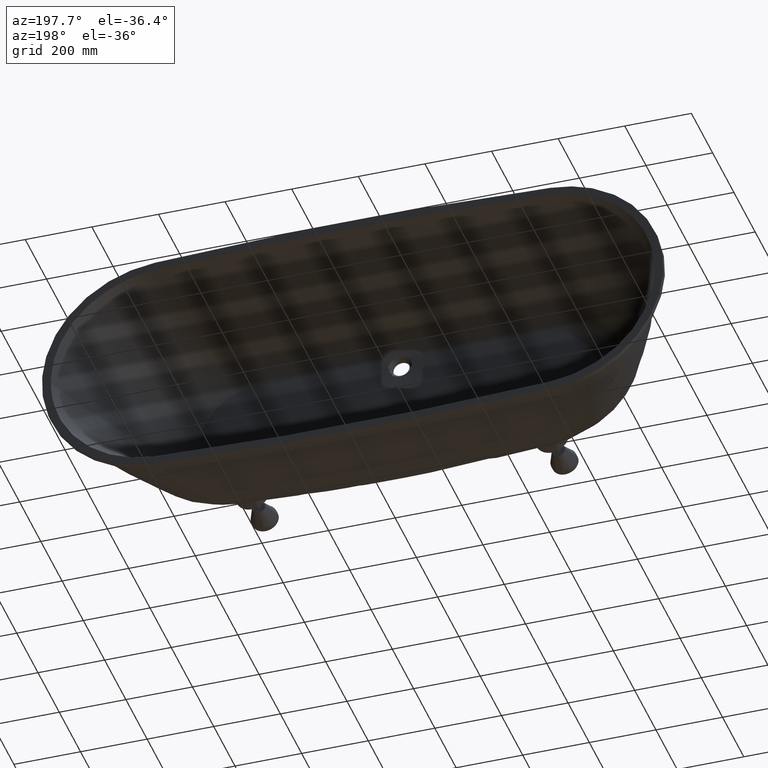
[diagram: clean part render]
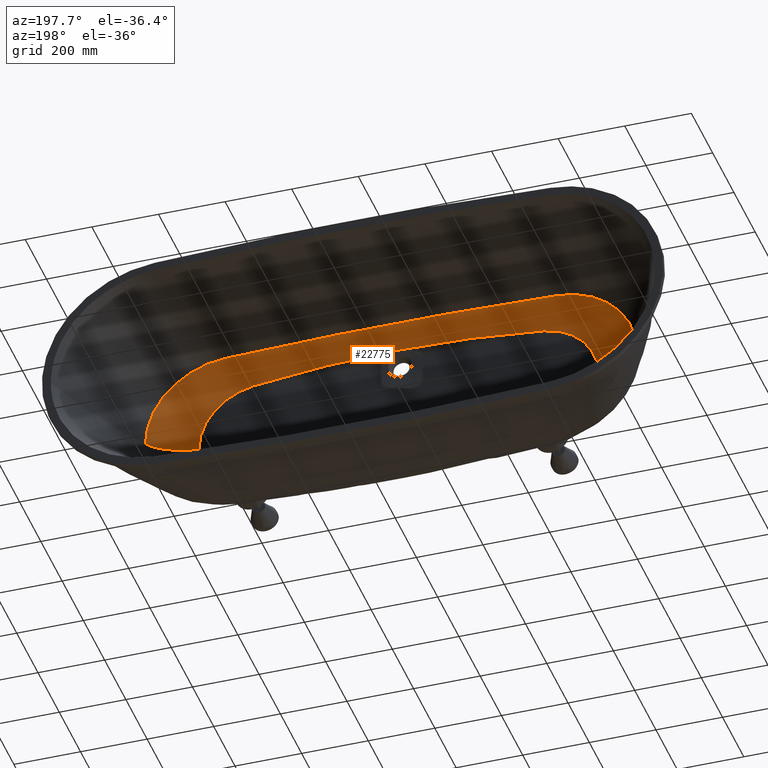
[diagram: same view with one face highlighted and labeled with its STEP entity id]
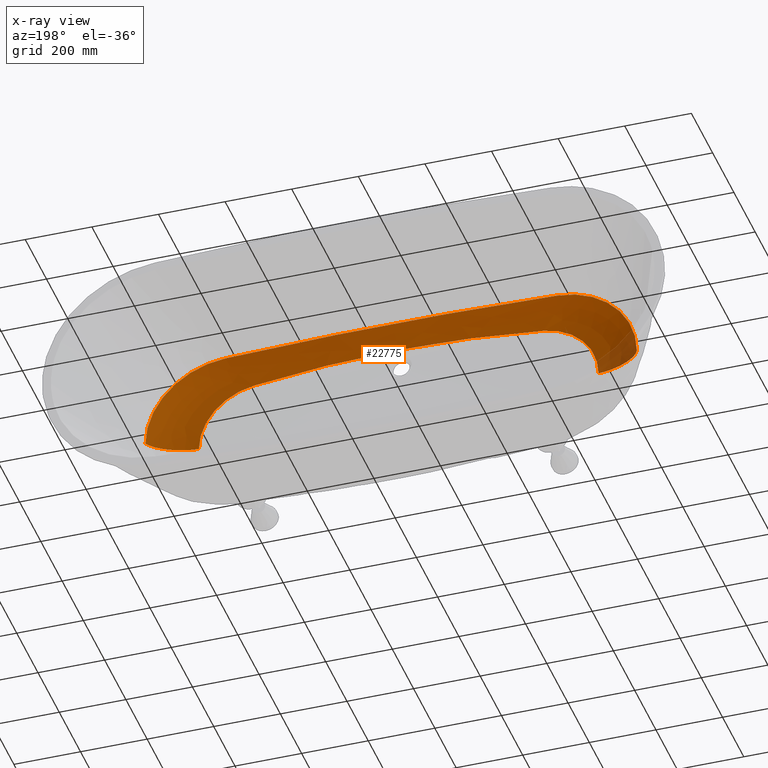
[diagram: x-ray of the same camera — body ghosted, the highlighted face saturated]
A machine part, auxiliary view. The second image highlights one B-rep face of the part: STEP entity #22775.
The next image is the same camera in x-ray: the body ghosted, the highlighted face saturated — about 4% of this face is hidden behind the body in this view.
In plain terms, the highlighted face is a freeform B-spline surface patch.
Its self-contained STEP definition (entity closure, byte-faithful):
#342 = CARTESIAN_POINT ( 'NONE',  ( 649.2991416546940400, -431.9108895998182900, 38.84573610810626600 ) ) ;
#408 = CARTESIAN_POINT ( 'NONE',  ( 717.3133064668983300, -400.1016136273897800, 43.06313338402651400 ) ) ;
#443 = CARTESIAN_POINT ( 'NONE',  ( 111.2259057790006300, -431.3415852579058800, -244.4137121342268400 ) ) ;
#509 = AXIS2_PLACEMENT_3D ( 'NONE', #46933, #46801, #46791 ) ;
#534 = CARTESIAN_POINT ( 'NONE',  ( 734.8067653625329300, -362.5000000000000600, 47.26631202619603300 ) ) ;
#642 = CARTESIAN_POINT ( 'NONE',  ( 119.2433835800832500, -399.3130571405592400, -253.7940736026473900 ) ) ;
#1028 = CARTESIAN_POINT ( 'NONE',  ( 125.1438117733976200, -362.4999999999997700, -262.8029886034009900 ) ) ;
#1176 = CARTESIAN_POINT ( 'NONE',  ( 734.9816999514893000, -362.1239838637261500, 47.30834381261773600 ) ) ;
#1212 = CARTESIAN_POINT ( 'NONE',  ( 125.2028160553307600, -362.1318694285941400, -262.8930777534085300 ) ) ;
#1412 = CARTESIAN_POINT ( 'NONE',  ( 125.2618203372639100, -361.7637388571885700, -262.9831669034160800 ) ) ;
#1492 = CARTESIAN_POINT ( 'NONE',  ( -737.7500000000017100, -362.5000000000000000, -5.597444716895938500E-007 ) ) ;
#1786 = CARTESIAN_POINT ( 'NONE',  ( 125.3208246191970500, -361.3956082857829400, -263.0732560534235600 ) ) ;
#1875 = CARTESIAN_POINT ( 'NONE',  ( 735.1566345404456800, -361.7479677274521900, 47.35037559903943100 ) ) ;
#1978 = CARTESIAN_POINT ( 'NONE',  ( 34.48296557051290300, -433.0510720755256100, -193.4571980038835800 ) ) ;
#2053 = CARTESIAN_POINT ( 'NONE',  ( -598.4325046224131500, -433.0313499075517700, 1.093482487208013600E-006 ) ) ;
#2124 = CARTESIAN_POINT ( 'NONE',  ( -598.9550030816086500, -433.0208999383678500, 1.082763111180836000E-006 ) ) ;
#2137 = CARTESIAN_POINT ( 'NONE',  ( 735.3315691294020600, -361.3719515911782900, 47.39240738546112700 ) ) ;
#2170 = CARTESIAN_POINT ( 'NONE',  ( 34.50738165478285400, -433.0340480503504600, -193.9714653359212900 ) ) ;
#2235 = CARTESIAN_POINT ( 'NONE',  ( 335.2779853915851000, -431.5731632821625100, -230.4333205591483700 ) ) ;
#2244 = CARTESIAN_POINT ( 'NONE',  ( -599.4775015408041600, -433.0104499691839200, 1.072043735153658600E-006 ) ) ;
#2314 = CARTESIAN_POINT ( 'NONE',  ( -599.9999999999996600, -433.0000000000000000, 1.061324359126480900E-006 ) ) ;
#2328 = CARTESIAN_POINT ( 'NONE',  ( 598.4324953409025100, -433.0313500984065100, 11.58928970260838700 ) ) ;
#2358 = CARTESIAN_POINT ( 'NONE',  ( 34.53179773905280600, -433.0170240251752600, -194.4857326679590100 ) ) ;
#2494 = CARTESIAN_POINT ( 'NONE',  ( -651.7325207124203000, -431.9653495857515400, 0.0000000000000000000 ) ) ;
#2530 = ORIENTED_EDGE ( 'NONE', *, *, #34924, .F. ) ;
#2543 = CARTESIAN_POINT ( 'NONE',  ( 34.55621382332275700, -433.0000000000001100, -194.9999999999967300 ) ) ;
#2611 = CARTESIAN_POINT ( 'NONE',  ( -720.1349644161437000, -400.1167917475619300, 0.0000000000000000000 ) ) ;
#2621 = CARTESIAN_POINT ( 'NONE',  ( 517.1683023891808900, -361.7536830419675800, -249.0664671342663300 ) ) ;
#2677 = CARTESIAN_POINT ( 'NONE',  ( -737.7500000000017100, -362.4999999999999400, -5.597444417693164800E-007 ) ) ;
#2726 = CARTESIAN_POINT ( 'NONE',  ( 36.97364790945678700, -431.3144529529533300, -245.9175576274925600 ) ) ;
#2860 = CARTESIAN_POINT ( 'NONE',  ( -737.9261503558402600, -362.1238320825243000, -5.653418861870096500E-007 ) ) ;
#2912 = CARTESIAN_POINT ( 'NONE',  ( 39.39108199559432700, -399.2780893204385400, -254.8401918436522600 ) ) ;
#2952 = CARTESIAN_POINT ( 'NONE',  ( 41.80851607108680700, -362.5000000000000000, -263.3752224199330400 ) ) ;
#2992 = CARTESIAN_POINT ( 'NONE',  ( 517.2863042899367700, -361.3805245629513900, -249.2124114213689000 ) ) ;
#2998 = CARTESIAN_POINT ( 'NONE',  ( 598.9549968939187500, -433.0209000656043400, 11.60274498713307500 ) ) ;
#3053 = CARTESIAN_POINT ( 'NONE',  ( -738.1023007116789400, -361.7476641650486600, -5.709393306047027000E-007 ) ) ;
#3099 = CARTESIAN_POINT ( 'NONE',  ( 41.83269041184173200, -362.1322191067956200, -263.4605727256958400 ) ) ;
#3138 = CARTESIAN_POINT ( 'NONE',  ( 41.85686475259665700, -361.7644382135912300, -263.5459230314586400 ) ) ;
#3234 = CARTESIAN_POINT ( 'NONE',  ( -738.2784510675174900, -361.3714962475730200, -5.765367750223958700E-007 ) ) ;
#3282 = CARTESIAN_POINT ( 'NONE',  ( 41.88103909335158200, -361.3966573203868500, -263.6312733372214400 ) ) ;
#3320 = CARTESIAN_POINT ( 'NONE',  ( -34.48296556183937200, -433.0510720755255500, -193.4571980038835800 ) ) ;
#3455 = CARTESIAN_POINT ( 'NONE',  ( -34.50738164610325500, -433.0340480503504100, -193.9714653359212900 ) ) ;
#3493 = CARTESIAN_POINT ( 'NONE',  ( -34.53179773036714600, -433.0170240251752000, -194.4857326679590100 ) ) ;
#3586 = CARTESIAN_POINT ( 'NONE',  ( -598.4325046223503900, -433.0313499075517700, 11.58929237276985800 ) ) ;
#3658 = CARTESIAN_POINT ( 'NONE',  ( 599.4774984469349900, -433.0104500328021700, 11.61620027165776200 ) ) ;
#3668 = CARTESIAN_POINT ( 'NONE',  ( -34.55621381463102900, -433.0000000000000600, -194.9999999999967300 ) ) ;
#3764 = CARTESIAN_POINT ( 'NONE',  ( -598.9550030815460100, -433.0208999383678500, 11.60274762057617400 ) ) ;
#3811 = CARTESIAN_POINT ( 'NONE',  ( -36.97364790016452200, -431.3144529529533300, -245.9175576274925600 ) ) ;
#3848 = CARTESIAN_POINT ( 'NONE',  ( -39.39108198569450500, -399.2780893204385400, -254.8401918436522600 ) ) ;
#3945 = CARTESIAN_POINT ( 'NONE',  ( -599.4775015407416300, -433.0104499691839200, 11.61620286838249100 ) ) ;
#3992 = CARTESIAN_POINT ( 'NONE',  ( -41.80851608186954100, -362.5000000000000000, -263.3752224199330400 ) ) ;
#4124 = CARTESIAN_POINT ( 'NONE',  ( -599.9999999999372400, -433.0000000000000000, 11.62965811618880500 ) ) ;
#4174 = CARTESIAN_POINT ( 'NONE',  ( -41.83269042283129800, -362.1322191067956200, -263.4605727256958400 ) ) ;
#4489 = CARTESIAN_POINT ( 'NONE',  ( -651.7325207123684500, -431.9653495857515400, 12.96186086928933000 ) ) ;
#4672 = CARTESIAN_POINT ( 'NONE',  ( -720.1349644161103900, -400.1167917475619300, 14.29406468371421500 ) ) ;
#4689 = CARTESIAN_POINT ( 'NONE',  ( 599.9999999999512300, -433.0000000000000600, 11.62965555618244900 ) ) ;
#4759 = CARTESIAN_POINT ( 'NONE',  ( 651.7328270312598300, -431.9653432869175700, 12.96186194476534000 ) ) ;
#4791 = CARTESIAN_POINT ( 'NONE',  ( -41.85686476379304800, -361.7644382135912300, -263.5459230314586400 ) ) ;
#4866 = CARTESIAN_POINT ( 'NONE',  ( -737.7499999999880600, -362.4999999999999400, 15.62626793839465300 ) ) ;
#4990 = CARTESIAN_POINT ( 'NONE',  ( -41.88103910475480500, -361.3966573203868500, -263.6312733372214400 ) ) ;
#5063 = CARTESIAN_POINT ( 'NONE',  ( -737.9261503558267300, -362.1238320825243000, 15.63958997094145800 ) ) ;
#5192 = CARTESIAN_POINT ( 'NONE',  ( -103.6814062814852000, -433.0502499589390500, -193.2853526242916200 ) ) ;
#5383 = CARTESIAN_POINT ( 'NONE',  ( -103.7553646519107100, -433.0334999726262600, -193.7865624027879800 ) ) ;
#5457 = CARTESIAN_POINT ( 'NONE',  ( -738.1023007116655200, -361.7476641650486600, 15.65291200348826300 ) ) ;
#5560 = CARTESIAN_POINT ( 'NONE',  ( -497.8274793388433200, -362.5000000000000000, 249.7968062449478500 ) ) ;
#5576 = CARTESIAN_POINT ( 'NONE',  ( -103.8293230223362100, -433.0167499863134700, -194.2877721812843700 ) ) ;
#5654 = CARTESIAN_POINT ( 'NONE',  ( -738.2784510675041900, -361.3714962475730200, 15.66623403603506800 ) ) ;
#5737 = CARTESIAN_POINT ( 'NONE',  ( 720.1348904424287400, -400.1169497178891600, 14.29406588926005400 ) ) ;
#5771 = CARTESIAN_POINT ( 'NONE',  ( -103.9032813927617300, -433.0000000000006800, -194.7889819597807600 ) ) ;
#5800 = CARTESIAN_POINT ( 'NONE',  ( 0.0000000000000000000, -362.5000000000000000, -12090.16542225539500 ) ) ;
#5850 = CARTESIAN_POINT ( 'NONE',  ( -596.3084347855626700, -433.0329998555192200, 34.43714033326823200 ) ) ;
#6043 = CARTESIAN_POINT ( 'NONE',  ( -596.8278981066936200, -433.0219999036791600, 34.48035766202841000 ) ) ;
#6160 = CARTESIAN_POINT ( 'NONE',  ( -111.2258923259800700, -431.3415855135841100, -244.4137125039778800 ) ) ;
#6208 = AXIS2_PLACEMENT_3D ( 'NONE', #14952, #14910, #14835 ) ;
#6237 = CARTESIAN_POINT ( 'NONE',  ( -597.3473614278245800, -433.0109999518391000, 34.52357499078858200 ) ) ;
#6348 = CARTESIAN_POINT ( 'NONE',  ( -119.2433873213750700, -399.3130505467044000, -253.7940737485171500 ) ) ;
#6415 = CARTESIAN_POINT ( 'NONE',  ( 365.2575224157814100, -399.6115123846025800, -243.3199685901903700 ) ) ;
#6493 = CARTESIAN_POINT ( 'NONE',  ( -597.8668247489555400, -432.9999999999990300, 34.56679231954876000 ) ) ;
#6506 = CARTESIAN_POINT ( 'NONE',  ( 737.7499999999944300, -362.5000000000000000, 15.62627104784368400 ) ) ;
#6537 = CARTESIAN_POINT ( 'NONE',  ( -125.1438143308756300, -362.5000000000002300, -262.8029885952292900 ) ) ;
#6607 = CARTESIAN_POINT ( 'NONE',  ( -649.2988367421240800, -431.9108958574166800, 38.84573576115035100 ) ) ;
#6675 = CARTESIAN_POINT ( 'NONE',  ( -717.3133805181498700, -400.1014564829008600, 43.06313020398142300 ) ) ;
#6687 = CARTESIAN_POINT ( 'NONE',  ( 737.9261510955701600, -362.1238305028210800, 15.63959309942952000 ) ) ;
#6704 = CIRCLE ( 'NONE', #25037, 189.9999999999996900 ) ;
#6722 = CARTESIAN_POINT ( 'NONE',  ( -125.2028186009706300, -362.1318694945331900, -262.8930777436964400 ) ) ;
#6791 = CARTESIAN_POINT ( 'NONE',  ( -734.8067665329142500, -362.5000000000009700, 47.26630424638258200 ) ) ;
#6874 = CARTESIAN_POINT ( 'NONE',  ( 738.1023021911457800, -361.7476610056422100, 15.65291515101535700 ) ) ;
#6908 = CARTESIAN_POINT ( 'NONE',  ( -125.2618228710656300, -361.7637389890661600, -262.9831668921635800 ) ) ;
#7040 = CARTESIAN_POINT ( 'NONE',  ( -734.9817003930618300, -362.1239854351720200, 47.30833598680659700 ) ) ;
#7088 = CARTESIAN_POINT ( 'NONE',  ( -125.3208271411606300, -361.3956084835991200, -263.0732560406307200 ) ) ;
#7124 = ORIENTED_EDGE ( 'NONE', *, *, #37685, .T. ) ;
#7242 = CARTESIAN_POINT ( 'NONE',  ( 738.2784532867215100, -361.3714915084632900, 15.66623720260119200 ) ) ;
#7278 = CARTESIAN_POINT ( 'NONE',  ( -207.6408538748851000, -433.0472625639023400, -192.4743642537962100 ) ) ;
#7318 = CARTESIAN_POINT ( 'NONE',  ( -207.7929820014641100, -433.0315083759346100, -192.9271551711258900 ) ) ;
#7357 = CARTESIAN_POINT ( 'NONE',  ( 379.6591249330833200, -433.0403268826159400, -189.7692145555805900 ) ) ;
#7416 = CARTESIAN_POINT ( 'NONE',  ( -735.1566342532095200, -361.7479708703430100, 47.35036772723060500 ) ) ;
#7467 = CARTESIAN_POINT ( 'NONE',  ( -207.9451101280431500, -433.0157541879668800, -193.3799460884555400 ) ) ;
#7506 = CARTESIAN_POINT ( 'NONE',  ( -208.0972382546221700, -432.9999999999991500, -193.8327370057852200 ) ) ;
#7598 = CARTESIAN_POINT ( 'NONE',  ( -735.3315681133572100, -361.3719563055140000, 47.39239946765462000 ) ) ;
#7642 = CARTESIAN_POINT ( 'NONE',  ( -223.1594290050202000, -431.4401794091367000, -238.6635208998127100 ) ) ;
#7671 = CARTESIAN_POINT ( 'NONE',  ( 598.4324953410015300, -433.0313500984065100, -11.94619376124118300 ) ) ;
#7683 = CARTESIAN_POINT ( 'NONE',  ( -241.4415631948668600, -399.4400921310869400, -249.6110730071683000 ) ) ;
#7774 = CARTESIAN_POINT ( 'NONE',  ( -587.2496059790972800, -433.0399177782345000, 66.97962713414614200 ) ) ;
#7819 = CARTESIAN_POINT ( 'NONE',  ( -249.9136591784251200, -362.4999999999997200, -260.2458906627235300 ) ) ;
#7857 = CARTESIAN_POINT ( 'NONE',  ( -249.9983801382607000, -362.1305990786888200, -260.3522388392790400 ) ) ;
#7961 = VERTEX_POINT ( 'NONE', #1492 ) ;
#8002 = CARTESIAN_POINT ( 'NONE',  ( -250.0831010980962800, -361.7611981573779800, -260.4585870158345500 ) ) ;
#8035 = CARTESIAN_POINT ( 'NONE',  ( -250.1678220579318600, -361.3917972360670800, -260.5649351923901200 ) ) ;
#8130 = CARTESIAN_POINT ( 'NONE',  ( -587.7525386084967100, -433.0266118521566300, 67.07156525840613900 ) ) ;
#8179 = CARTESIAN_POINT ( 'NONE',  ( -311.2163629581774000, -433.0432330783201600, -191.0863829996777700 ) ) ;
#8217 = CARTESIAN_POINT ( 'NONE',  ( -311.4522370999026700, -433.0288220522135700, -191.4720998777458500 ) ) ;
#8312 = CARTESIAN_POINT ( 'NONE',  ( -588.2554712378962400, -433.0133059260787700, 67.16350338266615000 ) ) ;
#8361 = CARTESIAN_POINT ( 'NONE',  ( -311.6881112416279500, -433.0144110261069300, -191.8578167558139600 ) ) ;
#8492 = CARTESIAN_POINT ( 'NONE',  ( -588.7584038672956700, -433.0000000000009700, 67.25544150692614700 ) ) ;
#8542 = CARTESIAN_POINT ( 'NONE',  ( -311.9239853833531700, -433.0000000000003400, -192.2435336338820700 ) ) ;
#8677 = CARTESIAN_POINT ( 'NONE',  ( -638.5537137088337000, -431.6825815764540800, 76.35822608712418000 ) ) ;
#8866 = CARTESIAN_POINT ( 'NONE',  ( -704.5651403689454400, -400.0371585912466200, 85.14139379802099900 ) ) ;
#8880 = CARTESIAN_POINT ( 'NONE',  ( 598.9549968940175400, -433.0209000656043400, -11.96006335898021800 ) ) ;
#9056 = CARTESIAN_POINT ( 'NONE',  ( -721.1717471392171300, -362.4999999999985800, 93.85071998059088100 ) ) ;
#9138 = CARTESIAN_POINT ( 'NONE',  ( 599.4774984470335500, -433.0104500328021700, -11.97393295671925100 ) ) ;
#9175 = CARTESIAN_POINT ( 'NONE',  ( -335.2778608016964200, -431.5731657320179700, -230.4333235416148400 ) ) ;
#9248 = CARTESIAN_POINT ( 'NONE',  ( -721.3378132069199200, -362.1246284140860900, 93.93781324241658100 ) ) ;
#9369 = CARTESIAN_POINT ( 'NONE',  ( -365.2575534182232100, -399.6114495266458600, -243.3199695315639400 ) ) ;
#9562 = CARTESIAN_POINT ( 'NONE',  ( -375.0507051465169800, -362.5000000000001700, -255.9730734554825300 ) ) ;
#9633 = CARTESIAN_POINT ( 'NONE',  ( -721.5038792746227000, -361.7492568281736000, 94.02490650424228100 ) ) ;
#9749 = CARTESIAN_POINT ( 'NONE',  ( -375.1486366637998900, -362.1288855047337200, -256.0996044947217500 ) ) ;
#9826 = CARTESIAN_POINT ( 'NONE',  ( -721.6699453423253800, -361.3738852422611100, 94.11199976606798100 ) ) ;
#9942 = CARTESIAN_POINT ( 'NONE',  ( -375.2465681810828100, -361.7577710094672600, -256.2261355339609300 ) ) ;
#10018 = CARTESIAN_POINT ( 'NONE',  ( -572.7845687979263400, -433.0507718585618000, 97.09619483295790600 ) ) ;
#10106 = CARTESIAN_POINT ( 'NONE',  ( 600.0000000000495700, -433.0000000000000600, -11.98780255445828400 ) ) ;
#10141 = CARTESIAN_POINT ( 'NONE',  ( -375.3444996983657800, -361.3866565142008100, -256.3526665732001700 ) ) ;
#10172 = DIRECTION ( 'NONE',  ( 0.0000000000000000000, 0.0000000000000000000, 1.000000000000000000 ) ) ;
#10219 = CARTESIAN_POINT ( 'NONE',  ( -573.2582786265762700, -433.0338479057078900, 97.23582789648259000 ) ) ;
#10414 = CARTESIAN_POINT ( 'NONE',  ( -573.7319884552262000, -433.0169239528539700, 97.37546096000727400 ) ) ;
#10525 = CARTESIAN_POINT ( 'NONE',  ( -379.6591256881797000, -433.0403267806368000, -189.7692145471149800 ) ) ;
#10594 = CARTESIAN_POINT ( 'NONE',  ( 375.0506949026815800, -362.4999999999994300, -255.9730738821627900 ) ) ;
#10602 = CARTESIAN_POINT ( 'NONE',  ( -574.2056982838761300, -433.0000000000000600, 97.51509402353195800 ) ) ;
#10715 = CARTESIAN_POINT ( 'NONE',  ( -379.9556957047773300, -433.0268845204245200, -190.1044598016494800 ) ) ;
#10795 = CARTESIAN_POINT ( 'NONE',  ( -621.1076615165359300, -431.3243611035735500, 111.3401498180548100 ) ) ;
#10862 = CARTESIAN_POINT ( 'NONE',  ( -683.6508439256873500, -399.9362765042578200, 124.4406854922537100 ) ) ;
#10905 = CARTESIAN_POINT ( 'NONE',  ( -380.2522657213749500, -433.0134422602122900, -190.4397050561839500 ) ) ;
#10978 = CARTESIAN_POINT ( 'NONE',  ( -698.5407179076544300, -362.5000000000015300, 137.3738352985473600 ) ) ;
#11046 = CARTESIAN_POINT ( 'NONE',  ( -698.6896166474740500, -362.1256372349590200, 137.5031667966102900 ) ) ;
#11060 = CARTESIAN_POINT ( 'NONE',  ( 651.7328270313387300, -431.9653432869175700, -13.36103005337252700 ) ) ;
#11089 = CARTESIAN_POINT ( 'NONE',  ( -380.5488357379725200, -433.0000000000000000, -190.7749503107184500 ) ) ;
#11230 = CARTESIAN_POINT ( 'NONE',  ( -698.8385153872938000, -361.7512744699164400, 137.6324982946732100 ) ) ;
#11244 = CARTESIAN_POINT ( 'NONE',  ( 720.1348904424770600, -400.1169497178891600, -14.73425999637494300 ) ) ;
#11276 = CARTESIAN_POINT ( 'NONE',  ( -409.9122037179319000, -431.6690831473008500, -223.9675497695774900 ) ) ;
#11352 = CARTESIAN_POINT ( 'NONE',  ( 379.9556966094407900, -433.0268845884106700, -190.1044597729452100 ) ) ;
#11365 = ORIENTED_EDGE ( 'NONE', *, *, #35852, .F. ) ;
#11410 = CARTESIAN_POINT ( 'NONE',  ( -698.9874141271135400, -361.3769117048739200, 137.7618297927361700 ) ) ;
#11459 = CARTESIAN_POINT ( 'NONE',  ( -448.3579017211810100, -399.7350423752605500, -238.0454601341357700 ) ) ;
#11599 = CARTESIAN_POINT ( 'NONE',  ( -553.3527577840203500, -433.0650552533586500, 124.1528430984326700 ) ) ;
#11648 = CARTESIAN_POINT ( 'NONE',  ( -459.1329259165558500, -362.5000000000000000, -251.9469465542014200 ) ) ;
#11687 = CARTESIAN_POINT ( 'NONE',  ( -459.2406761585095900, -362.1276495762473900, -252.0859614184020600 ) ) ;
#11759 = CARTESIAN_POINT ( 'NONE',  ( 737.7489928924352400, -362.5000000000000600, 0.7085093145465779500 ) ) ;
#11785 = CARTESIAN_POINT ( 'NONE',  ( -553.7860909968435400, -433.0433701689053700, 124.3341712002728300 ) ) ;
#11795 = VERTEX_POINT ( 'NONE', #11759 ) ;
#11835 = CARTESIAN_POINT ( 'NONE',  ( -459.3484264004633800, -361.7552991524947900, -252.2249762826027100 ) ) ;
#11875 = CARTESIAN_POINT ( 'NONE',  ( -459.4561766424171200, -361.3829487287421800, -252.3639911468033600 ) ) ;
#11972 = CARTESIAN_POINT ( 'NONE',  ( -554.2194242096666100, -433.0216850844520900, 124.5154993021130000 ) ) ;
#12020 = CARTESIAN_POINT ( 'NONE',  ( -426.0826207059477600, -433.0384290142749800, -188.7361566917950600 ) ) ;
#12061 = CARTESIAN_POINT ( 'NONE',  ( -426.4227023231499100, -433.0256193428500100, -189.0372102199631000 ) ) ;
#12149 = CARTESIAN_POINT ( 'NONE',  ( -554.6527574224898000, -432.9999999999988100, 124.6968274039531800 ) ) ;
#12195 = CARTESIAN_POINT ( 'NONE',  ( -426.7627839403519900, -433.0128096714250300, -189.3382637481311100 ) ) ;
#12222 = CARTESIAN_POINT ( 'NONE',  ( 737.7500000000090900, -362.5000000000000000, -16.10748872528845200 ) ) ;
#12234 = CARTESIAN_POINT ( 'NONE',  ( -427.1028655575541400, -433.0000000000000600, -189.6393172762991500 ) ) ;
#12373 = CARTESIAN_POINT ( 'NONE',  ( -460.7743128052902600, -431.7317157004976600, -219.4465972929366400 ) ) ;
#12408 = CARTESIAN_POINT ( 'NONE',  ( -505.1321540488817700, -399.8157465481446600, -234.1801512123833200 ) ) ;
#12504 = CARTESIAN_POINT ( 'NONE',  ( -597.5570359198326300, -430.8529619353162700, 142.6501048138716500 ) ) ;
#12555 = CARTESIAN_POINT ( 'NONE',  ( -516.9323012095281900, -362.5000000000000000, -248.7745784161582200 ) ) ;
#12590 = CARTESIAN_POINT ( 'NONE',  ( -517.0503026811345500, -362.1268425345185700, -248.9205226881959700 ) ) ;
#12685 = CARTESIAN_POINT ( 'NONE',  ( -655.3459987475903300, -399.8035210212519200, 159.3460308718475500 ) ) ;
#12731 = CARTESIAN_POINT ( 'NONE',  ( -517.1683041527410300, -361.7536850690370900, -249.0664669602337500 ) ) ;
#12812 = CIRCLE ( 'NONE', #6208, 189.9999999999996900 ) ;
#12949 = CARTESIAN_POINT ( 'NONE',  ( 737.9261510955844900, -362.1238305028210800, -16.12122101257758500 ) ) ;
#13048 = CARTESIAN_POINT ( 'NONE',  ( -667.7865494597716600, -362.4999999999989800, 175.7514716658463100 ) ) ;
#13222 = CARTESIAN_POINT ( 'NONE',  ( -667.9109549668934300, -362.1269647897864300, 175.9155260737863100 ) ) ;
#13239 = CARTESIAN_POINT ( 'NONE',  ( 738.1023021911597700, -361.7476610056422100, -16.13495329986672300 ) ) ;
#13409 = CARTESIAN_POINT ( 'NONE',  ( -668.0353604740151900, -361.7539295795739300, 176.0795804817262800 ) ) ;
#13523 = CARTESIAN_POINT ( 'NONE',  ( -517.2863056243475100, -361.3805276035556600, -249.2124112322715100 ) ) ;
#13598 = CARTESIAN_POINT ( 'NONE',  ( -668.1597659811370700, -361.3808943693613900, 176.2436348896662500 ) ) ;
#13717 = CARTESIAN_POINT ( 'NONE',  ( -450.8391838422286900, -433.0374294389845300, -185.7245009847247600 ) ) ;
#13902 = CARTESIAN_POINT ( 'NONE',  ( -451.2025883320760600, -433.0249529593232900, -186.0060372198798000 ) ) ;
#13976 = CARTESIAN_POINT ( 'NONE',  ( -529.3876765855347900, -433.0822611194821500, 147.5121925912293400 ) ) ;
#14097 = CARTESIAN_POINT ( 'NONE',  ( -451.5659928219233700, -433.0124764796620400, -186.2875734550348200 ) ) ;
#14171 = CARTESIAN_POINT ( 'NONE',  ( -529.7729946259995600, -433.0548407463213000, 147.7253681217451900 ) ) ;
#14293 = CARTESIAN_POINT ( 'NONE',  ( -451.9293973117707400, -433.0000000000008500, -186.5691096901898600 ) ) ;
#14371 = CARTESIAN_POINT ( 'NONE',  ( -530.1583126664644400, -433.0274203731604000, 147.9385436522610500 ) ) ;
#14449 = CARTESIAN_POINT ( 'NONE',  ( 738.2784532867351600, -361.3714915084632900, -16.14868558715585700 ) ) ;
#14481 = CARTESIAN_POINT ( 'NONE',  ( -487.9100398709138600, -431.7647049840370000, -214.4439844580145100 ) ) ;
#14556 = CARTESIAN_POINT ( 'NONE',  ( -530.5436307069292100, -432.9999999999994900, 148.1517191827769300 ) ) ;
#14748 = CARTESIAN_POINT ( 'NONE',  ( -568.6939317430482100, -430.2851115682300400, 169.2582073526638500 ) ) ;
#14827 = CARTESIAN_POINT ( 'NONE',  ( 596.1666068381053900, -433.0314601260739100, -35.90524316303184100 ) ) ;
#14835 = DIRECTION ( 'NONE',  ( 0.0000000000000000000, 0.0000000000000000000, 1.000000000000000000 ) ) ;
#14858 = CARTESIAN_POINT ( 'NONE',  ( -535.4219553028555100, -399.8582543608744100, -229.3735546487098400 ) ) ;
#14910 = DIRECTION ( 'NONE',  ( 0.0000000000000000000, 1.000000000000000000, 0.0000000000000000000 ) ) ;
#14929 = CARTESIAN_POINT ( 'NONE',  ( -620.8175905333153000, -399.6436029415596100, 188.4654923582898500 ) ) ;
#14952 = CARTESIAN_POINT ( 'NONE',  ( -409.9999999999999400, -433.0000000000000000, 1.004210375300829600E-013 ) ) ;
#15033 = CARTESIAN_POINT ( 'NONE',  ( -547.8021270676620100, -362.5000000000008500, -244.1836430015801200 ) ) ;
#15110 = CARTESIAN_POINT ( 'NONE',  ( -630.3693296262840700, -362.5000000000005100, 207.2340058025610000 ) ) ;
#15177 = CARTESIAN_POINT ( 'NONE',  ( -630.4648470172138600, -362.1285639705848800, 207.4216909370036900 ) ) ;
#15219 = CARTESIAN_POINT ( 'NONE',  ( -547.9259287853100200, -362.1264174563921200, -244.3317438851088400 ) ) ;
#15289 = CARTESIAN_POINT ( 'NONE',  ( -630.5603644081435300, -361.7571279411693000, 207.6093760714463800 ) ) ;
#15355 = CARTESIAN_POINT ( 'NONE',  ( -630.6558817990733100, -361.3856919117537200, 207.7970612058890900 ) ) ;
#15368 = CARTESIAN_POINT ( 'NONE',  ( 596.6859307492384200, -433.0209734173827800, -35.94790261431926100 ) ) ;
#15400 = CARTESIAN_POINT ( 'NONE',  ( -548.0497305029580300, -361.7528349127833800, -244.4798447686375500 ) ) ;
#15577 = CARTESIAN_POINT ( 'NONE',  ( -548.1735322206060300, -361.3792523691745900, -244.6279456521662600 ) ) ;
#15655 = CARTESIAN_POINT ( 'NONE',  ( 380.2522682857982700, -433.0134422942053300, -190.4397049903098200 ) ) ;
#15756 = CARTESIAN_POINT ( 'NONE',  ( -486.2092094563978400, -433.0360160912591100, -174.0986446730972800 ) ) ;
#15788 = CARTESIAN_POINT ( 'NONE',  ( 597.2052546603715700, -433.0104867086916400, -35.99056206560667400 ) ) ;
#15823 = CARTESIAN_POINT ( 'NONE',  ( 375.1486266275505300, -362.1288848761533900, -256.0996049350824800 ) ) ;
#15891 = CARTESIAN_POINT ( 'NONE',  ( -501.3556905245820900, -433.1018826137847700, 166.5158970911078600 ) ) ;
#15939 = CARTESIAN_POINT ( 'NONE',  ( -486.6069209037077600, -433.0240107275058100, -174.3473262738108100 ) ) ;
#15979 = CARTESIAN_POINT ( 'NONE',  ( -487.0046323510177300, -433.0120053637524500, -174.5960078745243000 ) ) ;
#16069 = CARTESIAN_POINT ( 'NONE',  ( -501.6901541940086400, -433.0679217425232000, 166.7490507744516300 ) ) ;
#16115 = CARTESIAN_POINT ( 'NONE',  ( -487.4023437983276500, -432.9999999999990900, -174.8446894752378300 ) ) ;
#16153 = CARTESIAN_POINT ( 'NONE',  ( -526.7797148191115200, -431.8113501234314500, -199.4666301399425100 ) ) ;
#16246 = CARTESIAN_POINT ( 'NONE',  ( -502.0246178634352000, -433.0339608712616300, 166.9822044577953800 ) ) ;
#16267 = CARTESIAN_POINT ( 'NONE',  ( -599.9999960240021400, -432.9999999999998900, -4.386447050314051600E-007 ) ) ;
#16291 = CARTESIAN_POINT ( 'NONE',  ( -578.8829737137188000, -399.9183582078641700, -214.1527440896766400 ) ) ;
#16328 = CARTESIAN_POINT ( 'NONE',  ( -592.2149160620865600, -362.4999999999984700, -228.7471530420408800 ) ) ;
#16420 = CARTESIAN_POINT ( 'NONE',  ( -502.3590815328618100, -433.0000000000000600, 167.2153581411391500 ) ) ;
#16441 = CARTESIAN_POINT ( 'NONE',  ( -651.7325207124203000, -431.9653495857515400, -1.841104281402746100E-024 ) ) ;
#16463 = CARTESIAN_POINT ( 'NONE',  ( -592.3482354855702900, -362.1258164179198500, -228.8930971315645300 ) ) ;
#16499 = CARTESIAN_POINT ( 'NONE',  ( -592.4815549090540100, -361.7516328358412400, -229.0390412210881800 ) ) ;
#16590 = CARTESIAN_POINT ( 'NONE',  ( -535.4742963275732600, -429.6375374988549000, 190.2998812444813800 ) ) ;
#16613 = CARTESIAN_POINT ( 'NONE',  ( -720.1349644161437000, -400.1167917475619300, 0.0000000000000000000 ) ) ;
#16639 = CARTESIAN_POINT ( 'NONE',  ( -592.6148743325376200, -361.3774492537625600, -229.1849853106118100 ) ) ;
#16675 = CARTESIAN_POINT ( 'NONE',  ( -518.4862114370736200, -433.0347236260496400, -155.9083640765226400 ) ) ;
#16768 = CARTESIAN_POINT ( 'NONE',  ( -581.5235960437808000, -399.4612330645007900, 210.7532361904412400 ) ) ;
#16819 = CARTESIAN_POINT ( 'NONE',  ( -518.9165972215435000, -433.0231490840333800, -156.1207313249068700 ) ) ;
#16857 = CARTESIAN_POINT ( 'NONE',  ( -519.3469830060133700, -433.0115745420171200, -156.3330985732911000 ) ) ;
#16938 = CARTESIAN_POINT ( 'NONE',  ( -737.7500000000017100, -362.5000000000000000, -5.597444716895938500E-007 ) ) ;
#16952 = CARTESIAN_POINT ( 'NONE',  ( -588.1672758453549900, -362.5000000000011400, 230.5987145315498300 ) ) ;
#16997 = CARTESIAN_POINT ( 'NONE',  ( -519.7773687904832500, -433.0000000000008500, -156.5454658216752900 ) ) ;
#17118 = CARTESIAN_POINT ( 'NONE',  ( -588.2337126433707200, -362.1303876693562000, 230.7971693149609100 ) ) ;
#17301 = CARTESIAN_POINT ( 'NONE',  ( -588.3001494413865700, -361.7607753387112000, 230.9956240983719900 ) ) ;
#17477 = CARTESIAN_POINT ( 'NONE',  ( -588.3665862394023000, -361.3911630080662600, 231.1940788817830700 ) ) ;
#17665 = CARTESIAN_POINT ( 'NONE',  ( -469.7212612823782900, -433.1234128931192800, 180.4993525122806900 ) ) ;
#17779 = CARTESIAN_POINT ( 'NONE',  ( -562.3898226983853900, -431.8540057409611000, -177.5719260577369300 ) ) ;
#17854 = CARTESIAN_POINT ( 'NONE',  ( -470.0074652869036500, -433.0822752620790100, 180.7406793615790500 ) ) ;
#17965 = CARTESIAN_POINT ( 'NONE',  ( -618.8206050052170900, -399.9733214203774300, -191.4146391803758100 ) ) ;
#18052 = CARTESIAN_POINT ( 'NONE',  ( 597.7245785715045900, -433.0000000000005100, -36.03322151689409500 ) ) ;
#18122 = CARTESIAN_POINT ( 'NONE',  ( 649.1427875945805700, -431.9617120107801000, -40.25692956515342000 ) ) ;
#18156 = CARTESIAN_POINT ( 'NONE',  ( -633.1517876756175800, -362.5000000000025600, -205.1910484149115100 ) ) ;
#18229 = CARTESIAN_POINT ( 'NONE',  ( -470.2936692914289600, -433.0411376310386800, 180.9820062108774200 ) ) ;
#18339 = CARTESIAN_POINT ( 'NONE',  ( -633.2950995023217000, -362.1252667857988300, -205.3288125072568800 ) ) ;
#18411 = CARTESIAN_POINT ( 'NONE',  ( -470.5798732959543100, -432.9999999999984100, 181.2233330601758000 ) ) ;
#18522 = CARTESIAN_POINT ( 'NONE',  ( -633.4384113290257100, -361.7505335715951000, -205.4665765996022300 ) ) ;
#18596 = CARTESIAN_POINT ( 'NONE',  ( -498.9169034469798000, -428.9269672237320500, 205.1170805154589500 ) ) ;
#18708 = CARTESIAN_POINT ( 'NONE',  ( -633.5817231557297200, -361.3758003573913700, -205.6043406919476100 ) ) ;
#18781 = CARTESIAN_POINT ( 'NONE',  ( -539.0476449042678300, -399.2611221893970400, 225.5764890393309900 ) ) ;
#18903 = CARTESIAN_POINT ( 'NONE',  ( -546.4921634716573600, -433.0335869106496600, -131.9354287122301600 ) ) ;
#18971 = CARTESIAN_POINT ( 'NONE',  ( -543.2470848516926500, -362.4999999999989800, 245.2424653239248500 ) ) ;
#19089 = CARTESIAN_POINT ( 'NONE',  ( -546.9524247641574000, -433.0223912737662900, -132.1083186541484100 ) ) ;
#19163 = CARTESIAN_POINT ( 'NONE',  ( -543.2890792511668700, -362.1323887781050000, 245.4391250867707900 ) ) ;
#19271 = CARTESIAN_POINT ( 'NONE',  ( -547.4126860566574400, -433.0111956368829700, -132.2812085960666500 ) ) ;
#19343 = CARTESIAN_POINT ( 'NONE',  ( 375.2465583524195300, -361.7577697523074100, -256.2261359880022300 ) ) ;
#19352 = CARTESIAN_POINT ( 'NONE',  ( -543.3310736506412000, -361.7647775562110200, 245.6357848496167300 ) ) ;
#19417 = CARTESIAN_POINT ( 'NONE',  ( -543.3730680501154200, -361.3971663343170300, 245.8324446124626700 ) ) ;
#19463 = CARTESIAN_POINT ( 'NONE',  ( -547.8729473491573600, -432.9999999999996000, -132.4540985379848900 ) ) ;
#19536 = CARTESIAN_POINT ( 'NONE',  ( -446.5992302795109500, -433.1387010406041900, 185.9590936837687400 ) ) ;
#19604 = CARTESIAN_POINT ( 'NONE',  ( -446.8583392144904000, -433.0924673604027900, 186.1996246350724100 ) ) ;
#19651 = CARTESIAN_POINT ( 'NONE',  ( -593.4433723491571300, -431.8915211006583900, -149.5719145694953600 ) ) ;
#19711 = CARTESIAN_POINT ( 'NONE',  ( 375.3444900772885300, -361.3866546284613700, -256.3526670409219200 ) ) ;
#19717 = CARTESIAN_POINT ( 'NONE',  ( -447.1174481494699100, -433.0462336802014000, 186.4401555863761100 ) ) ;
#19780 = CARTESIAN_POINT ( 'NONE',  ( -447.3765570844494200, -433.0000000000000000, 186.6806865376798000 ) ) ;
#19827 = CARTESIAN_POINT ( 'NONE',  ( -653.7929206357442800, -400.0216612360205200, -161.9264209858430100 ) ) ;
#20011 = CARTESIAN_POINT ( 'NONE',  ( -669.1156642763533000, -362.4999999999981800, -174.2369636372916700 ) ) ;
#20088 = CARTESIAN_POINT ( 'NONE',  ( 380.5488399621558000, -433.0000000000000600, -190.7749502076744400 ) ) ;
#20146 = CARTESIAN_POINT ( 'NONE',  ( -473.0309070824168900, -428.4224079008512800, 210.4956322113131900 ) ) ;
#20193 = CARTESIAN_POINT ( 'NONE',  ( -669.2688917127593400, -362.1247833876379300, -174.3600690638061200 ) ) ;
#20235 = CARTESIAN_POINT ( 'NONE',  ( -669.4221191491655000, -361.7495667752776900, -174.4831744903206100 ) ) ;
#20331 = CARTESIAN_POINT ( 'NONE',  ( -509.6692157706401600, -399.1190281401847000, 230.3059261835091100 ) ) ;
#20381 = CARTESIAN_POINT ( 'NONE',  ( -669.5753465855716500, -361.3743501629174900, -174.6062799168350900 ) ) ;
#20423 = CARTESIAN_POINT ( 'NONE',  ( -569.2412951418676800, -433.0326408123625600, -103.1652701668413100 ) ) ;
#20513 = CARTESIAN_POINT ( 'NONE',  ( -512.8432551387283000, -362.5000000000000000, 249.1910292029801300 ) ) ;
#20553 = CARTESIAN_POINT ( 'NONE',  ( -569.7272975457008200, -433.0217605415749100, -103.2960728343450700 ) ) ;
#20583 = CARTESIAN_POINT ( 'NONE',  ( 717.1372363786305200, -400.1122697686183200, -44.24635301368657300 ) ) ;
#20595 = CARTESIAN_POINT ( 'NONE',  ( -570.2132999495339600, -433.0108802707873100, -103.4268755018488300 ) ) ;
#20687 = CARTESIAN_POINT ( 'NONE',  ( -512.8749955324092300, -362.1338097185981700, 249.3798802331748400 ) ) ;
#20735 = CARTESIAN_POINT ( 'NONE',  ( -570.6993023533671000, -432.9999999999997200, -103.5576781693525800 ) ) ;
#20771 = CARTESIAN_POINT ( 'NONE',  ( -618.8183522378303700, -431.9227454665738200, -116.5084373281404300 ) ) ;
#20862 = CARTESIAN_POINT ( 'NONE',  ( -512.9067359260901600, -361.7676194371963400, 249.5687312633695300 ) ) ;
#20942 = CARTESIAN_POINT ( 'NONE',  ( -682.5162034975616100, -400.0618948924257000, -126.7104384240601900 ) ) ;
#21038 = CARTESIAN_POINT ( 'NONE',  ( -512.9384763197711000, -361.4014291557944600, 249.7575822935642400 ) ) ;
#21091 = CARTESIAN_POINT ( 'NONE',  ( -698.7509114741441200, -362.5000000000023900, -136.8870696373489300 ) ) ;
#21133 = CARTESIAN_POINT ( 'NONE',  ( -698.9132585539099400, -362.1243810510781600, -136.9888359494818000 ) ) ;
#21275 = CARTESIAN_POINT ( 'NONE',  ( -699.0756056336757600, -361.7487621021538800, -137.0906022616146900 ) ) ;
#21303 = CARTESIAN_POINT ( 'NONE',  ( 734.6280685227415000, -362.5000000000017600, -48.23361283863338400 ) ) ;
#21405 = CARTESIAN_POINT ( 'NONE',  ( -400.1269805677983400, -433.1689623627165100, 192.2537918775238900 ) ) ;
#21433 = EDGE_CURVE ( 'NONE', #51044, #55311, #51332, .T. ) ;
#21780 = CARTESIAN_POINT ( 'NONE',  ( -400.3410549889891900, -433.1126415751443200, 192.4895769388938300 ) ) ;
#21965 = CARTESIAN_POINT ( 'NONE',  ( -400.5551294101800900, -433.0563207875721900, 192.7253620002637400 ) ) ;
#21984 = CARTESIAN_POINT ( 'NONE',  ( -435.3736536214229300, -432.9999999999999400, 188.2981085988388400 ) ) ;
#22052 = CARTESIAN_POINT ( 'NONE',  ( 734.8029768441825800, -362.1238773023155800, -48.27348543688285100 ) ) ;
#22086 = CARTESIAN_POINT ( 'NONE',  ( -699.2379527134415900, -361.3731431532296500, -137.1923685737475600 ) ) ;
#22156 = CARTESIAN_POINT ( 'NONE',  ( -400.7692038313709300, -433.0000000000000000, 192.9611470616336800 ) ) ;
#22279 = CARTESIAN_POINT ( 'NONE',  ( -585.9712972625144400, -433.0319201984874000, -70.73923038065618100 ) ) ;
#22347 = CARTESIAN_POINT ( 'NONE',  ( -421.9646910779904900, -427.4236843987959600, 216.3062026428149500 ) ) ;
#22469 = CARTESIAN_POINT ( 'NONE',  ( -586.4774687406139700, -433.0212801323251000, -70.82620884800306300 ) ) ;
#22540 = CARTESIAN_POINT ( 'NONE',  ( -452.5413146473434300, -398.8377675232148900, 234.5177308064309600 ) ) ;
#22665 = CARTESIAN_POINT ( 'NONE',  ( -586.9836402187136200, -433.0106400661628100, -70.91318731534993000 ) ) ;
#22741 = CARTESIAN_POINT ( 'NONE',  ( -454.5369064396398400, -362.5000000000000000, 251.5432651389445500 ) ) ;
#22775 = ADVANCED_FACE ( 'NONE', ( #25572 ), #23827, .F. ) ;
#22862 = CARTESIAN_POINT ( 'NONE',  ( -587.4898116968132600, -433.0000000000005100, -71.00016578269679700 ) ) ;
#23021 = CARTESIAN_POINT ( 'NONE',  ( 734.9778851656236600, -361.7477546046294500, -48.31335803513232500 ) ) ;
#23056 = CARTESIAN_POINT ( 'NONE',  ( -637.6057996274730600, -431.9465281027434600, -79.61189522298107600 ) ) ;
#23246 = CARTESIAN_POINT ( 'NONE',  ( -703.9096790615747100, -400.0925396272007800, -87.00928836404989400 ) ) ;
#23324 = CARTESIAN_POINT ( 'NONE',  ( -454.5568623575628100, -362.1366223247678700, 251.7135204822697000 ) ) ;
#23376 = VERTEX_POINT ( 'NONE', #52846 ) ;
#23405 = CARTESIAN_POINT ( 'NONE',  ( 735.1527934870647400, -361.3716319069432600, -48.35323063338179100 ) ) ;
#23437 = CARTESIAN_POINT ( 'NONE',  ( -720.8947312394652700, -362.4999999999985800, -94.39547400894545600 ) ) ;
#23514 = CARTESIAN_POINT ( 'NONE',  ( -454.5768182754857800, -361.7732446495356800, 251.8837758255948500 ) ) ;
#23591 = CARTESIAN_POINT ( 'NONE',  ( 585.9712857368886000, -433.0319203836303900, -70.73923658931438800 ) ) ;
#23624 = CARTESIAN_POINT ( 'NONE',  ( -721.0645817612440900, -362.1240746037265700, -94.46933586539442700 ) ) ;
#23693 = CARTESIAN_POINT ( 'NONE',  ( 207.6408593680352200, -433.0472625998916100, -192.4743642200643300 ) ) ;
#23700 = CARTESIAN_POINT ( 'NONE',  ( -454.5967741934087500, -361.4098669743035500, 252.0540311689200100 ) ) ;
#23768 = CARTESIAN_POINT ( 'NONE',  ( -329.5783340107183200, -433.2163784440046500, 200.6624443496025700 ) ) ;
#23813 = CARTESIAN_POINT ( 'NONE',  ( -721.2344322830230100, -361.7481492074545600, -94.54319772184338400 ) ) ;
#23827 = B_SPLINE_SURFACE_WITH_KNOTS ( 'NONE', 3, 3, ( 
 ( #33455, #42064, #28911, #28873, #28689, #28509, #28328, #28142, #27951, #27765 ),
 ( #27576, #27385, #27200, #26816, #26627, #26237, #25618, #25441, #25298, #25265 ),
 ( #25124, #25091, #24951, #24913, #24777, #24738, #24594, #24554, #24369, #24182 ),
 ( #23998, #23813, #23624, #23437, #23246, #23056, #22862, #22665, #22469, #22279 ),
 ( #22086, #21275, #21133, #21091, #20942, #20771, #20735, #20595, #20553, #20423 ),
 ( #20381, #20235, #20193, #20011, #19827, #19651, #19463, #19271, #19089, #18903 ),
 ( #18708, #18522, #18339, #18156, #17965, #17779, #16997, #16857, #16819, #16675 ),
 ( #16639, #16499, #16463, #16328, #16291, #16153, #16115, #15979, #15939, #15756 ),
 ( #15577, #15400, #15219, #15033, #14858, #14481, #14293, #14097, #13902, #13717 ),
 ( #13523, #12731, #12590, #12555, #12408, #12373, #12234, #12195, #12061, #12020 ),
 ( #11875, #11835, #11687, #11648, #11459, #11276, #11089, #10905, #10715, #10525 ),
 ( #10141, #9942, #9749, #9562, #9369, #9175, #8542, #8361, #8217, #8179 ),
 ( #8035, #8002, #7857, #7819, #7683, #7642, #7506, #7467, #7318, #7278 ),
 ( #7088, #6908, #6722, #6537, #6348, #6160, #5771, #5576, #5383, #5192 ),
 ( #4990, #4791, #4174, #3992, #3848, #3811, #3668, #3493, #3455, #3320 ),
 ( #3282, #3138, #3099, #2952, #2912, #2726, #2543, #2358, #2170, #1978 ),
 ( #1786, #1412, #1212, #1028, #642, #443, #50193, #49997, #49805, #49430 ),
 ( #49240, #44938, #41543, #40965, #37261, #36881, #32932, #28203, #27832, #23693 ),
 ( #19711, #19343, #15823, #10594, #6415, #2235, #50565, #41926, #37460, #37276 ),
 ( #37085, #33129, #32947, #32769, #28408, #24632, #20088, #15655, #11352, #7357 ),
 ( #2992, #2621, #55385, #54734, #54682, #54615, #54551, #54259, #53894, #53325 ),
 ( #52750, #49897, #49706, #49331, #48765, #48380, #47255, #46536, #46008, #45584 ),
 ( #45025, #43864, #43437, #42346, #42172, #41258, #40675, #40602, #40407, #40277 ),
 ( #39609, #39023, #38833, #38455, #38269, #38143, #37964, #36968, #36787, #36223 ),
 ( #35848, #35275, #35203, #35012, #34821, #34696, #34451, #33135, #32654, #32473 ),
 ( #32287, #31083, #30689, #30376, #29808, #29623, #29444, #29086, #28590, #28291 ),
 ( #28109, #27919, #27542, #26974, #26139, #24454, #24401, #24269, #23961, #23591 ),
 ( #23405, #23021, #22052, #21303, #20583, #18122, #18052, #15788, #15368, #14827 ),
 ( #14449, #13239, #12949, #12222, #11244, #11060, #10106, #9138, #8880, #7671 ),
 ( #7242, #6874, #6687, #6506, #5737, #4759, #4689, #3658, #2998, #2328 ),
 ( #2137, #1875, #1176, #534, #408, #342, #56029, #55672, #55492, #55310 ),
 ( #54969, #54782, #54603, #54422, #54246, #54180, #54070, #54003, #53881, #53814 ),
 ( #53627, #53433, #53243, #53054, #52859, #52654, #52458, #52085, #51709, #51520 ),
 ( #51327, #50975, #50803, #50624, #50263, #50072, #50005, #49883, #49693, #49628 ),
 ( #49438, #49249, #49057, #48291, #48103, #47913, #47730, #47541, #47363, #47177 ),
 ( #47004, #46817, #46637, #46467, #46117, #45748, #45682, #45570, #45498, #45380 ),
 ( #45307, #44752, #44561, #44363, #44174, #43978, #43780, #43422, #43241, #43058 ),
 ( #42869, #42694, #42510, #42160, #41978, #41797, #41612, #41361, #41170, #41050 ),
 ( #40975, #40586, #40391, #40197, #39996, #39795, #39591, #39395, #39199, #39004 ),
 ( #38818, #38633, #38437, #38256, #38071, #37888, #37703, #37517, #37332, #37144 ),
 ( #36954, #36888, #36772, #36707, #36594, #36328, #36143, #35955, #35767, #35574 ),
 ( #35384, #35185, #34993, #34804, #34621, #34436, #34249, #34070, #33893, #33371 ),
 ( #33188, #33000, #32823, #32761, #32639, #32573, #32459, #32394, #32274, #32209 ),
 ( #32012, #31261, #31065, #30863, #30672, #30485, #30103, #29914, #29548, #29371 ),
 ( #29193, #29011, #28825, #28639, #28462, #28400, #28277, #28097, #28028, #27906 ),
 ( #27842, #27651, #27459, #27274, #27085, #26696, #26506, #26310, #26122, #25939 ),
 ( #25757, #25391, #25216, #25043, #24690, #24507, #24322, #24137, #23883, #23768 ),
 ( #23700, #23514, #23324, #22741, #22540, #22347, #22156, #21965, #21780, #21405 ),
 ( #21038, #20862, #20687, #20513, #20331, #20146, #19780, #19717, #19604, #19536 ),
 ( #19417, #19352, #19163, #18971, #18781, #18596, #18411, #18229, #17854, #17665 ),
 ( #17477, #17301, #17118, #16952, #16768, #16590, #16420, #16246, #16069, #15891 ),
 ( #15355, #15289, #15177, #15110, #14929, #14748, #14556, #14371, #14171, #13976 ),
 ( #13598, #13409, #13222, #13048, #12685, #12504, #12149, #11972, #11785, #11599 ),
 ( #11410, #11230, #11046, #10978, #10862, #10795, #10602, #10414, #10219, #10018 ),
 ( #9826, #9633, #9248, #9056, #8866, #8677, #8492, #8312, #8130, #7774 ),
 ( #7598, #7416, #7040, #6791, #6675, #6607, #6493, #6237, #6043, #5850 ),
 ( #5654, #5457, #5063, #4866, #4672, #4489, #4124, #3945, #3764, #3586 ),
 ( #3234, #3053, #2860, #2677, #2611, #2494, #2314, #2244, #2124, #2053 ) ),
 .UNSPECIFIED., .T., .F., .F.,
 ( 4, 1, 1, 1, 1, 1, 1, 1, 2, 1, 1, 1, 2, 1, 1, 1, 2, 1, 1, 1, 1, 1, 1, 1, 2, 1, 1, 1, 1, 1, 1, 1, 2, 1, 1, 1, 2, 1, 1, 1, 2, 1, 1, 1, 1, 1, 1, 1, 4 ),
 ( 4, 3, 3, 4 ),
 ( 0.0000000000000000000, 0.01319874836149122400, 0.02639749672298244800, 0.03959624508447367300, 0.05279499344596489500, 0.06599374180745612400, 0.07919249016894734600, 0.09239123853043856900, 0.1055899868919298200, 0.1416683084812116500, 0.1777466300704935200, 0.2138249516597754100, 0.2499032732490572800, 0.2859815948474064300, 0.3220599164457554900, 0.3581382380441045500, 0.3942165596424536700, 0.4074153040416476600, 0.4206140484408417100, 0.4338127928400357100, 0.4470115372392297100, 0.4602102816384236500, 0.4734090260376176400, 0.4866077704368116900, 0.4998065148360056900, 0.5126109394996126700, 0.5254153641632195400, 0.5382197888268264200, 0.5510242134904332900, 0.5638286381540402700, 0.5766330628176472600, 0.5894374874812542400, 0.6022419121448611100, 0.6391572468376358600, 0.6760725815304106100, 0.7129879162231853600, 0.7499032509159602200, 0.7868185855966518500, 0.8237339202773434900, 0.8606492549580351300, 0.8975645896387267600, 0.9103690159338858600, 0.9231734422290450700, 0.9359778685242042800, 0.9487822948193633800, 0.9615867211145224800, 0.9743911474096816900, 0.9871955737048409000, 1.000000000000000000 ),
 ( -0.01000000000000000000, 0.0000000000000000000, 1.000000000000000000, 1.010100000000000000 ),
 .UNSPECIFIED. ) ;
#23883 = CARTESIAN_POINT ( 'NONE',  ( -329.7367009721502300, -433.1442522960031700, 200.8932256919044100 ) ) ;
#23961 = CARTESIAN_POINT ( 'NONE',  ( 586.4774602384516100, -433.0212802557534200, -70.82621499193524500 ) ) ;
#23998 = CARTESIAN_POINT ( 'NONE',  ( -721.4042828048018200, -361.3722238111825500, -94.61705957829234100 ) ) ;
#24137 = CARTESIAN_POINT ( 'NONE',  ( -329.8950679335821400, -433.0721261480017000, 201.1240070342062400 ) ) ;
#24182 = CARTESIAN_POINT ( 'NONE',  ( -596.1666169846450900, -433.0314599363214300, -35.90523742926860300 ) ) ;
#24269 = CARTESIAN_POINT ( 'NONE',  ( 586.9836347400146200, -433.0106401278764600, -70.91319339455608900 ) ) ;
#24322 = CARTESIAN_POINT ( 'NONE',  ( -330.0534348950140500, -433.0000000000002800, 201.3547883765080800 ) ) ;
#24369 = CARTESIAN_POINT ( 'NONE',  ( -596.6859378120699400, -433.0209732908808700, -35.94789694126564000 ) ) ;
#24401 = CARTESIAN_POINT ( 'NONE',  ( 587.4898092415775200, -432.9999999999994300, -71.00017179717694700 ) ) ;
#24454 = CARTESIAN_POINT ( 'NONE',  ( 637.6060965250414900, -431.9465219923786200, -79.61189482894533900 ) ) ;
#24507 = CARTESIAN_POINT ( 'NONE',  ( -345.7333320664919800, -425.8587972275770400, 224.2044262281740700 ) ) ;
#24554 = CARTESIAN_POINT ( 'NONE',  ( -597.2052586394946700, -433.0104866454402700, -35.99055645326268400 ) ) ;
#24594 = CARTESIAN_POINT ( 'NONE',  ( -597.7245794669195200, -432.9999999999997200, -36.03321596525972800 ) ) ;
#24632 = CARTESIAN_POINT ( 'NONE',  ( 409.9123722747793300, -431.6690797816559700, -223.9675459863495600 ) ) ;
#24690 = CARTESIAN_POINT ( 'NONE',  ( -368.2829235494548900, -398.3970638345965100, 240.1517156398061800 ) ) ;
#24738 = CARTESIAN_POINT ( 'NONE',  ( -649.1424831723428500, -431.9617182732125100, -40.25693002437265700 ) ) ;
#24777 = CARTESIAN_POINT ( 'NONE',  ( -717.1373093873456800, -400.1121126779733600, -44.24635591660337000 ) ) ;
#24913 = CARTESIAN_POINT ( 'NONE',  ( -734.6280673289153400, -362.5000000000011400, -48.23361994843461500 ) ) ;
#24951 = CARTESIAN_POINT ( 'NONE',  ( -734.8029749083311800, -362.1238788732214300, -48.27349258875293000 ) ) ;
#25037 = AXIS2_PLACEMENT_3D ( 'NONE', #32722, #32656, #32605 ) ;
#25043 = CARTESIAN_POINT ( 'NONE',  ( -369.9029661427175600, -362.4999999999992600, 254.5043625024976300 ) ) ;
#25091 = CARTESIAN_POINT ( 'NONE',  ( -734.9778824877469100, -361.7477577464417200, -48.31336522907124500 ) ) ;
#25124 = CARTESIAN_POINT ( 'NONE',  ( -735.1527900671626400, -361.3716366196620100, -48.35323786938955900 ) ) ;
#25216 = CARTESIAN_POINT ( 'NONE',  ( -369.9191665686502100, -362.1410293616533000, 254.6478889711245600 ) ) ;
#25265 = CARTESIAN_POINT ( 'NONE',  ( -598.4325046224777200, -433.0313499075517700, -11.94619124323842600 ) ) ;
#25298 = CARTESIAN_POINT ( 'NONE',  ( -598.9550030816731100, -433.0208999383678500, -11.96006087742438100 ) ) ;
#25391 = CARTESIAN_POINT ( 'NONE',  ( -369.9353669945828600, -361.7820587233073900, 254.7914154397514900 ) ) ;
#25441 = CARTESIAN_POINT ( 'NONE',  ( -599.4775015408685000, -433.0104499691839200, -11.97393051161033600 ) ) ;
#25572 = FACE_OUTER_BOUND ( 'NONE', #46182, .T. ) ;
#25618 = CARTESIAN_POINT ( 'NONE',  ( -600.0000000000638900, -433.0000000000000000, -11.98780014579629200 ) ) ;
#25757 = CARTESIAN_POINT ( 'NONE',  ( -369.9515674205155200, -361.4230880849614200, 254.9349419083783900 ) ) ;
#25939 = CARTESIAN_POINT ( 'NONE',  ( -220.4542763576326600, -433.2827969676600900, 209.9596426252791400 ) ) ;
#26122 = CARTESIAN_POINT ( 'NONE',  ( -220.5516656885078200, -433.1885313117732000, 210.1881276431204800 ) ) ;
#26139 = CARTESIAN_POINT ( 'NONE',  ( 703.9096087168844600, -400.0926930377792100, -87.00928537405236800 ) ) ;
#26237 = CARTESIAN_POINT ( 'NONE',  ( -651.7325207124737300, -431.9653495857515400, -13.36103125331654000 ) ) ;
#26310 = CARTESIAN_POINT ( 'NONE',  ( -220.6490550193829600, -433.0942656558863200, 210.4166126609618200 ) ) ;
#26506 = CARTESIAN_POINT ( 'NONE',  ( -220.7464443502580900, -432.9999999999994300, 210.6450976788031500 ) ) ;
#26627 = CARTESIAN_POINT ( 'NONE',  ( -720.1349644161779200, -400.1167917475619300, -14.73426129951243100 ) ) ;
#26696 = CARTESIAN_POINT ( 'NONE',  ( -230.3889523576967200, -423.6667667438728100, 233.2673766729955100 ) ) ;
#26816 = CARTESIAN_POINT ( 'NONE',  ( -737.7500000000158000, -362.4999999999998900, -16.10749190545276100 ) ) ;
#26974 = CARTESIAN_POINT ( 'NONE',  ( 720.8947342884553100, -362.4999999999977300, -94.39546670421580600 ) ) ;
#27085 = CARTESIAN_POINT ( 'NONE',  ( -243.3832285615787900, -397.7797439808093700, 246.5096144753832700 ) ) ;
#27200 = CARTESIAN_POINT ( 'NONE',  ( -737.9261503558541300, -362.1238320825242500, -16.12122421151216400 ) ) ;
#27274 = CARTESIAN_POINT ( 'NONE',  ( -246.1658427899720300, -362.5000000000006800, 257.5847911780858200 ) ) ;
#27385 = CARTESIAN_POINT ( 'NONE',  ( -738.1023007116925800, -361.7476641650486000, -16.13495651757156700 ) ) ;
#27459 = CARTESIAN_POINT ( 'NONE',  ( -246.1936689322559700, -362.1472025601926200, 257.6955429451128300 ) ) ;
#27542 = CARTESIAN_POINT ( 'NONE',  ( 721.0645855441710000, -362.1240730696199000, -94.46932851751744000 ) ) ;
#27576 = CARTESIAN_POINT ( 'NONE',  ( -738.2784510675310200, -361.3714962475729600, -16.14868882363097000 ) ) ;
#27651 = CARTESIAN_POINT ( 'NONE',  ( -246.2214950745399200, -361.7944051203845100, 257.8062947121398500 ) ) ;
#27765 = CARTESIAN_POINT ( 'NONE',  ( -598.4325046224131500, -433.0313499075517700, 1.093482487208013600E-006 ) ) ;
#27832 = CARTESIAN_POINT ( 'NONE',  ( 207.7929880431375100, -433.0315083999277600, -192.9271551223093900 ) ) ;
#27842 = CARTESIAN_POINT ( 'NONE',  ( -246.2493212168238600, -361.4416076805764500, 257.9170464791668600 ) ) ;
#27906 = CARTESIAN_POINT ( 'NONE',  ( -109.7994569936966200, -433.3323644423821900, 215.5868878013838000 ) ) ;
#27919 = CARTESIAN_POINT ( 'NONE',  ( 721.2344367998866800, -361.7481461392421200, -94.54319033081907300 ) ) ;
#27951 = CARTESIAN_POINT ( 'NONE',  ( -598.9550030816086500, -433.0208999383678500, 1.082763111180836000E-006 ) ) ;
#28020 = VERTEX_POINT ( 'NONE', #5560 ) ;
#28028 = CARTESIAN_POINT ( 'NONE',  ( -109.8480684501165100, -433.2215762949215900, 215.8164779353829500 ) ) ;
#28097 = CARTESIAN_POINT ( 'NONE',  ( -109.8966799065364100, -433.1107881474609400, 216.0460680693821000 ) ) ;
#28109 = CARTESIAN_POINT ( 'NONE',  ( 721.4042880556022500, -361.3722192088642900, -94.61705214412069200 ) ) ;
#28142 = CARTESIAN_POINT ( 'NONE',  ( -599.4775015408041600, -433.0104499691839200, 1.072043735153658600E-006 ) ) ;
#28203 = CARTESIAN_POINT ( 'NONE',  ( 207.9451167182397700, -433.0157541999639100, -193.3799460245544100 ) ) ;
#28277 = CARTESIAN_POINT ( 'NONE',  ( -109.9452913629563100, -433.0000000000003400, 216.2756582033812300 ) ) ;
#28291 = CARTESIAN_POINT ( 'NONE',  ( 569.2412837484776000, -433.0326409903023000, -103.1652741010711900 ) ) ;
#28328 = CARTESIAN_POINT ( 'NONE',  ( -599.9999999999996600, -433.0000000000000000, 1.061324359126480900E-006 ) ) ;
#28400 = CARTESIAN_POINT ( 'NONE',  ( -114.7583068500740600, -422.0308764890470500, 239.0073546389403400 ) ) ;
#28408 = CARTESIAN_POINT ( 'NONE',  ( 448.3578622165098900, -399.7351285280428200, -238.0454588498295200 ) ) ;
#28462 = CARTESIAN_POINT ( 'NONE',  ( -120.2976977338613100, -397.3190443963688400, 250.5099327566209700 ) ) ;
#28509 = CARTESIAN_POINT ( 'NONE',  ( -651.7325207124203000, -431.9653495857515400, 0.0000000000000000000 ) ) ;
#28590 = CARTESIAN_POINT ( 'NONE',  ( 569.7272890640774700, -433.0217606602018300, -103.2960767189847200 ) ) ;
#28639 = CARTESIAN_POINT ( 'NONE',  ( -123.6240776124028000, -362.4999999999992600, 259.4182595800428400 ) ) ;
#28689 = CARTESIAN_POINT ( 'NONE',  ( -720.1349644161437000, -400.1167917475619300, 0.0000000000000000000 ) ) ;
#28825 = CARTESIAN_POINT ( 'NONE',  ( -123.6573414111882100, -362.1518095560355700, 259.5073428482770600 ) ) ;
#28873 = CARTESIAN_POINT ( 'NONE',  ( -737.7500000000017100, -362.4999999999999400, -5.597444417693164800E-007 ) ) ;
#28911 = CARTESIAN_POINT ( 'NONE',  ( -737.9261503558402600, -362.1238320825243000, -5.653418861870096500E-007 ) ) ;
#29011 = CARTESIAN_POINT ( 'NONE',  ( -123.6906052099736300, -361.8036191120719400, 259.5964261165112200 ) ) ;
#29086 = CARTESIAN_POINT ( 'NONE',  ( 570.2132943796772200, -433.0108803301013200, -103.4268793368982400 ) ) ;
#29193 = CARTESIAN_POINT ( 'NONE',  ( -123.7238690087590500, -361.4554286681082500, 259.6855093847454400 ) ) ;
#29371 = CARTESIAN_POINT ( 'NONE',  ( -36.33827390518587200, -433.3460784257998200, 216.8078627840552000 ) ) ;
#29444 = CARTESIAN_POINT ( 'NONE',  ( 570.6992996952770900, -433.0000000000008500, -103.5576819548117700 ) ) ;
#29548 = CARTESIAN_POINT ( 'NONE',  ( -36.35546751112332900, -433.2307189505332300, 217.0385751893701600 ) ) ;
#29623 = CARTESIAN_POINT ( 'NONE',  ( 618.8186378734840200, -431.9227395940127400, -116.5084362036759700 ) ) ;
#29808 = CARTESIAN_POINT ( 'NONE',  ( 682.5161361155068100, -400.0620425409069300, -126.7104365679593300 ) ) ;
#29914 = CARTESIAN_POINT ( 'NONE',  ( -36.37266111706078000, -433.1153594752666400, 217.2692875946851500 ) ) ;
#30103 = CARTESIAN_POINT ( 'NONE',  ( -36.38985472299823000, -433.0000000000000600, 217.5000000000001100 ) ) ;
#30376 = CARTESIAN_POINT ( 'NONE',  ( 698.7509145142378200, -362.5000000000017600, -136.8870654002119000 ) ) ;
#30485 = CARTESIAN_POINT ( 'NONE',  ( -38.09219194452828800, -421.5782697755847700, 240.3428124074225100 ) ) ;
#30494 = VERTEX_POINT ( 'NONE', #33489 ) ;
#30672 = CARTESIAN_POINT ( 'NONE',  ( -39.79452918201447900, -397.1915812464471900, 251.4449167258914900 ) ) ;
#30689 = CARTESIAN_POINT ( 'NONE',  ( 698.9132622982250500, -362.1243795745926900, -136.9888316885344200 ) ) ;
#30699 = CARTESIAN_POINT ( 'NONE',  ( 599.9992662370478900, -433.0000000000002300, 0.5270872470701378800 ) ) ;
#30767 = CARTESIAN_POINT ( 'NONE',  ( 651.7319936014844200, -431.9653246458964900, 0.5875781689361057000 ) ) ;
#30863 = CARTESIAN_POINT ( 'NONE',  ( -41.49686641367454600, -362.5000000000000000, 259.8345777446056100 ) ) ;
#30959 = CARTESIAN_POINT ( 'NONE',  ( 737.7489928924352400, -362.5000000000000600, 0.7085093145465779500 ) ) ;
#31047 = CARTESIAN_POINT ( 'NONE',  ( 720.1339240074531700, -400.1169444679163100, 0.6480455669396166800 ) ) ;
#31065 = CARTESIAN_POINT ( 'NONE',  ( -41.51388978599114700, -362.1530841875355100, 259.9184743547927500 ) ) ;
#31083 = CARTESIAN_POINT ( 'NONE',  ( 699.0756100822122800, -361.7487591491836300, -137.0905979768569700 ) ) ;
#31261 = CARTESIAN_POINT ( 'NONE',  ( -41.53091315830774700, -361.8061683750710200, 260.0023709649798900 ) ) ;
#31967 = DIRECTION ( 'NONE',  ( 0.0000000000000000000, 0.0000000000000000000, -1.000000000000000000 ) ) ;
#32012 = CARTESIAN_POINT ( 'NONE',  ( -41.54793653062434100, -361.4592525626065400, 260.0862675751670800 ) ) ;
#32164 = DIRECTION ( 'NONE',  ( -0.0000000000000000000, 1.000000000000000000, 0.0000000000000000000 ) ) ;
#32209 = CARTESIAN_POINT ( 'NONE',  ( 36.33827388420095200, -433.3460784257998700, 216.8078627840554900 ) ) ;
#32274 = CARTESIAN_POINT ( 'NONE',  ( 36.35546749046635300, -433.2307189505332900, 217.0385751893704500 ) ) ;
#32287 = CARTESIAN_POINT ( 'NONE',  ( 699.2379578661996200, -361.3731387237745600, -137.1923642651794900 ) ) ;
#32350 = CARTESIAN_POINT ( 'NONE',  ( 0.0000000000000000000, -433.0000000000000000, -3042.613636363689700 ) ) ;
#32394 = CARTESIAN_POINT ( 'NONE',  ( 36.37266109673174700, -433.1153594752667000, 217.2692875946854100 ) ) ;
#32459 = CARTESIAN_POINT ( 'NONE',  ( 36.38985470299714800, -433.0000000000001100, 217.5000000000004000 ) ) ;
#32473 = CARTESIAN_POINT ( 'NONE',  ( 546.4921542012198200, -433.0335870791389000, -131.9354295085840900 ) ) ;
#32573 = CARTESIAN_POINT ( 'NONE',  ( 38.09219195699671400, -421.5782697755847700, 240.3428124074225100 ) ) ;
#32605 = DIRECTION ( 'NONE',  ( 0.0000000000000000000, 0.0000000000000000000, 1.000000000000000000 ) ) ;
#32639 = CARTESIAN_POINT ( 'NONE',  ( 39.79452919504013400, -397.1915812464471900, 251.4449167258914900 ) ) ;
#32654 = CARTESIAN_POINT ( 'NONE',  ( 546.9524182448528800, -433.0223913860919000, -132.1083194208367200 ) ) ;
#32656 = DIRECTION ( 'NONE',  ( 0.0000000000000000000, 1.000000000000000000, 0.0000000000000000000 ) ) ;
#32722 = CARTESIAN_POINT ( 'NONE',  ( 409.9999999999999400, -433.0000000000000000, 0.0000000000000000000 ) ) ;
#32761 = CARTESIAN_POINT ( 'NONE',  ( 41.49686643890969200, -362.5000000000000000, 259.8345777446056100 ) ) ;
#32769 = CARTESIAN_POINT ( 'NONE',  ( 459.1329206770320800, -362.5000000000000600, -251.9469468417773300 ) ) ;
#32800 = ORIENTED_EDGE ( 'NONE', *, *, #21433, .F. ) ;
#32823 = CARTESIAN_POINT ( 'NONE',  ( 41.51388981134839200, -362.1530841875355100, 259.9184743547927500 ) ) ;
#32932 = CARTESIAN_POINT ( 'NONE',  ( 208.0972453933420600, -433.0000000000000600, -193.8327369267994400 ) ) ;
#32947 = CARTESIAN_POINT ( 'NONE',  ( 459.2406712616373200, -362.1276487147196700, -252.0859617216967800 ) ) ;
#33000 = CARTESIAN_POINT ( 'NONE',  ( 41.53091318378708500, -361.8061683750710200, 260.0023709649798900 ) ) ;
#33129 = CARTESIAN_POINT ( 'NONE',  ( 459.3484218462425000, -361.7552974294392200, -252.2249766016162500 ) ) ;
#33135 = CARTESIAN_POINT ( 'NONE',  ( 547.4126822884859400, -433.0111956930448400, -132.2812093330893800 ) ) ;
#33188 = CARTESIAN_POINT ( 'NONE',  ( 41.54793655622577800, -361.4592525626065400, 260.0862675751670800 ) ) ;
#33268 = CARTESIAN_POINT ( 'NONE',  ( 497.8274793388400200, -362.5000000000000000, 249.7968062449480400 ) ) ;
#33371 = CARTESIAN_POINT ( 'NONE',  ( 109.7994556042413700, -433.3323644492635400, 215.5868878081747900 ) ) ;
#33455 = CARTESIAN_POINT ( 'NONE',  ( -738.2784510675174900, -361.3714962475730200, -5.765367750223958700E-007 ) ) ;
#33489 = CARTESIAN_POINT ( 'NONE',  ( 599.9992662370478900, -433.0000000000002300, 0.5270872470701378800 ) ) ;
#33893 = CARTESIAN_POINT ( 'NONE',  ( 109.8480672024402300, -433.2215762995091900, 215.8164779425051700 ) ) ;
#34013 = EDGE_CURVE ( 'NONE', #11795, #30494, #39238, .T. ) ;
#34070 = CARTESIAN_POINT ( 'NONE',  ( 109.8966788006391100, -433.1107881497548500, 216.0460680768355500 ) ) ;
#34249 = CARTESIAN_POINT ( 'NONE',  ( 109.9452903988379800, -433.0000000000005100, 216.2756582111659300 ) ) ;
#34436 = CARTESIAN_POINT ( 'NONE',  ( 114.7583199234780400, -422.0308762619455900, 239.0073546795201200 ) ) ;
#34451 = CARTESIAN_POINT ( 'NONE',  ( 547.8729463321190000, -432.9999999999978400, -132.4540992453420100 ) ) ;
#34453 = DIRECTION ( 'NONE',  ( 0.0000000000000000000, 0.0000000000000000000, 1.000000000000000000 ) ) ;
#34516 = DIRECTION ( 'NONE',  ( 0.0000000000000000000, 1.000000000000000000, 0.0000000000000000000 ) ) ;
#34582 = CARTESIAN_POINT ( 'NONE',  ( 487.7500000000000000, -362.5000000000000000, 0.0000000000000000000 ) ) ;
#34621 = CARTESIAN_POINT ( 'NONE',  ( 120.2976949718600800, -397.3190512931090600, 250.5099327307880200 ) ) ;
#34696 = CARTESIAN_POINT ( 'NONE',  ( 593.4436437215285900, -431.8915155398958100, -149.5719123396637500 ) ) ;
#34804 = CARTESIAN_POINT ( 'NONE',  ( 123.6240785887603400, -362.4999999999997700, 259.4182595774586800 ) ) ;
#34821 = CARTESIAN_POINT ( 'NONE',  ( 653.7928562705352500, -400.0218013188771200, -161.9264204507302900 ) ) ;
#34924 = EDGE_CURVE ( 'NONE', #7961, #23376, #47955, .T. ) ;
#34993 = CARTESIAN_POINT ( 'NONE',  ( 123.6573424249293400, -362.1518094870686500, 259.5073428459253400 ) ) ;
#35012 = CARTESIAN_POINT ( 'NONE',  ( 669.1156650686945100, -362.4999999999977800, -174.2369632383301100 ) ) ;
#35185 = CARTESIAN_POINT ( 'NONE',  ( 123.6906062610983500, -361.8036189741375200, 259.5964261143920500 ) ) ;
#35203 = CARTESIAN_POINT ( 'NONE',  ( 669.2688931566760900, -362.1247819868089600, -174.3600686662061000 ) ) ;
#35275 = CARTESIAN_POINT ( 'NONE',  ( 669.4221212446576600, -361.7495639736201800, -174.4831740940821000 ) ) ;
#35384 = CARTESIAN_POINT ( 'NONE',  ( 123.7238700972673500, -361.4554284612064500, 259.6855093828587500 ) ) ;
#35574 = CARTESIAN_POINT ( 'NONE',  ( 220.4542713668655300, -433.2827970000480500, 209.9596428103382900 ) ) ;
#35767 = CARTESIAN_POINT ( 'NONE',  ( 220.5516613415543100, -433.1885313333652900, 210.1881278292291300 ) ) ;
#35848 = CARTESIAN_POINT ( 'NONE',  ( 669.5753493326392300, -361.3743459604314100, -174.6062795219581000 ) ) ;
#35852 = EDGE_CURVE ( 'NONE', #23376, #51044, #12812, .T. ) ;
#35913 = DIRECTION ( 'NONE',  ( 0.0000000000000000000, 1.000000000000000000, 0.0000000000000000000 ) ) ;
#35955 = CARTESIAN_POINT ( 'NONE',  ( 220.6490513162430600, -433.0942656666824700, 210.4166128481199700 ) ) ;
#36143 = CARTESIAN_POINT ( 'NONE',  ( 220.7464412909318400, -432.9999999999996600, 210.6450978670108000 ) ) ;
#36223 = CARTESIAN_POINT ( 'NONE',  ( 518.4862056490975400, -433.0347237832078200, -155.9083625523673800 ) ) ;
#36328 = CARTESIAN_POINT ( 'NONE',  ( 230.3890130422968000, -423.6667656749675600, 233.2673769651142100 ) ) ;
#36594 = CARTESIAN_POINT ( 'NONE',  ( 243.3832152269098700, -397.7797757990443300, 246.5096143899221200 ) ) ;
#36707 = CARTESIAN_POINT ( 'NONE',  ( 246.1658458171476100, -362.5000000000001700, 257.5847911232995700 ) ) ;
#36772 = CARTESIAN_POINT ( 'NONE',  ( 246.1936721230499900, -362.1472022420097100, 257.6955428906333600 ) ) ;
#36787 = CARTESIAN_POINT ( 'NONE',  ( 518.9165939857764400, -433.0231491888059200, -156.1207297838515400 ) ) ;
#36881 = CARTESIAN_POINT ( 'NONE',  ( 223.1594904529737300, -431.4401782213994900, -238.6635193272981300 ) ) ;
#36888 = CARTESIAN_POINT ( 'NONE',  ( 246.2214984289523400, -361.7944044840192500, 257.8062946579671000 ) ) ;
#36954 = CARTESIAN_POINT ( 'NONE',  ( 246.2493247348547200, -361.4416067260287400, 257.9170464253009000 ) ) ;
#36968 = CARTESIAN_POINT ( 'NONE',  ( 519.3469823224554600, -433.0115745944039500, -156.3330970153357400 ) ) ;
#37085 = CARTESIAN_POINT ( 'NONE',  ( 459.4561724308477400, -361.3829461441588400, -252.3639914815357200 ) ) ;
#37144 = CARTESIAN_POINT ( 'NONE',  ( 329.5783265499532600, -433.2163785116251200, 200.6624447144415900 ) ) ;
#37261 = CARTESIAN_POINT ( 'NONE',  ( 241.4415470680723100, -399.4401226817519200, -249.6110724852658200 ) ) ;
#37276 = CARTESIAN_POINT ( 'NONE',  ( 311.2163680956277300, -433.0432331525501600, -191.0863829228763400 ) ) ;
#37332 = CARTESIAN_POINT ( 'NONE',  ( 329.7366948133891900, -433.1442523410834700, 200.8932260592747500 ) ) ;
#37460 = CARTESIAN_POINT ( 'NONE',  ( 311.4522434083417000, -433.0288221017000300, -191.4720997724603000 ) ) ;
#37517 = CARTESIAN_POINT ( 'NONE',  ( 329.8950630768250700, -433.0721261705417600, 201.1240074041079400 ) ) ;
#37685 = EDGE_CURVE ( 'NONE', #7961, #28020, #45921, .T. ) ;
#37703 = CARTESIAN_POINT ( 'NONE',  ( 330.0534313402610000, -433.0000000000000600, 201.3547887489411000 ) ) ;
#37888 = CARTESIAN_POINT ( 'NONE',  ( 345.7334574230248400, -425.8587949958709900, 224.2044268512354700 ) ) ;
#37964 = CARTESIAN_POINT ( 'NONE',  ( 519.7773706591344800, -433.0000000000020500, -156.5454642468199300 ) ) ;
#38071 = CARTESIAN_POINT ( 'NONE',  ( 368.2828954293661900, -398.3971290368788200, 240.1517154804058700 ) ) ;
#38143 = CARTESIAN_POINT ( 'NONE',  ( 562.3900772610070400, -431.8540005542640800, -177.5719228096092500 ) ) ;
#38179 = AXIS2_PLACEMENT_3D ( 'NONE', #32350, #32164, #31967 ) ;
#38256 = CARTESIAN_POINT ( 'NONE',  ( 369.9029699764992100, -362.5000000000000000, 254.5043623867015900 ) ) ;
#38269 = CARTESIAN_POINT ( 'NONE',  ( 618.8205439909152100, -399.9734524125927400, -191.4146393999435500 ) ) ;
#38437 = CARTESIAN_POINT ( 'NONE',  ( 369.9191707219704900, -362.1410287096312000, 254.6478888557645600 ) ) ;
#38455 = CARTESIAN_POINT ( 'NONE',  ( 633.1517849360337800, -362.5000000000013600, -205.1910506524075400 ) ) ;
#38555 = ORIENTED_EDGE ( 'NONE', *, *, #39524, .T. ) ;
#38633 = CARTESIAN_POINT ( 'NONE',  ( 369.9353714674418300, -361.7820574192624600, 254.7914153248275100 ) ) ;
#38818 = CARTESIAN_POINT ( 'NONE',  ( 369.9515722129131600, -361.4230861288936600, 254.9349417938904900 ) ) ;
#38833 = CARTESIAN_POINT ( 'NONE',  ( 633.2950973454849200, -362.1252654758754900, -205.3288147649321600 ) ) ;
#39004 = CARTESIAN_POINT ( 'NONE',  ( 400.1269736529876000, -433.1689624566708400, 192.2537920840407000 ) ) ;
#39023 = CARTESIAN_POINT ( 'NONE',  ( 633.4384097549361700, -361.7505309517495700, -205.4665788774568100 ) ) ;
#39199 = CARTESIAN_POINT ( 'NONE',  ( 400.3410498303304600, -433.1126416377806000, 192.4895771505364900 ) ) ;
#39238 = B_SPLINE_CURVE_WITH_KNOTS ( 'NONE', 3,
 ( #30959, #31047, #30767, #30699 ),
 .UNSPECIFIED., .F., .F.,
 ( 4, 4 ),
 ( 1.663599813461758000E-015, 1.000000000000004200 ),
 .UNSPECIFIED. ) ;
#39395 = CARTESIAN_POINT ( 'NONE',  ( 400.5551260076733200, -433.0563208188903000, 192.7253622170322800 ) ) ;
#39524 = EDGE_CURVE ( 'NONE', #41264, #11795, #51944, .T. ) ;
#39591 = CARTESIAN_POINT ( 'NONE',  ( 400.7692021850162400, -433.0000000000000000, 192.9611472835280800 ) ) ;
#39609 = CARTESIAN_POINT ( 'NONE',  ( 633.5817221643873200, -361.3757964276237000, -205.6043429899814600 ) ) ;
#39795 = CARTESIAN_POINT ( 'NONE',  ( 421.9648633080732900, -427.4236812979930800, 216.3062033722210600 ) ) ;
#39996 = CARTESIAN_POINT ( 'NONE',  ( 452.5412750560526500, -398.8378565473393600, 234.5177305724189400 ) ) ;
#40197 = CARTESIAN_POINT ( 'NONE',  ( 454.5369085036367100, -362.5000000000000000, 251.5432650556771500 ) ) ;
#40277 = CARTESIAN_POINT ( 'NONE',  ( 486.2092069605051300, -433.0360162355498800, -174.0986426249250800 ) ) ;
#40391 = CARTESIAN_POINT ( 'NONE',  ( 454.5568648381125200, -362.1366214345265500, 251.7135204005097100 ) ) ;
#40407 = CARTESIAN_POINT ( 'NONE',  ( 486.6069207395654000, -433.0240108236993100, -174.3473242080654300 ) ) ;
#40586 = CARTESIAN_POINT ( 'NONE',  ( 454.5768211725883200, -361.7732428690531500, 251.8837757453422600 ) ) ;
#40602 = CARTESIAN_POINT ( 'NONE',  ( 487.0046345186256600, -433.0120054118486900, -174.5960057912057600 ) ) ;
#40675 = CARTESIAN_POINT ( 'NONE',  ( 487.4023482976859900, -432.9999999999981200, -174.8446873743461100 ) ) ;
#40965 = CARTESIAN_POINT ( 'NONE',  ( 249.9136509473360400, -362.5000000000005700, -260.2458908660339000 ) ) ;
#40975 = CARTESIAN_POINT ( 'NONE',  ( 454.5967775070641900, -361.4098643035797500, 252.0540310901748200 ) ) ;
#41050 = CARTESIAN_POINT ( 'NONE',  ( 446.5992233273206600, -433.1387011530206900, 185.9590937707776800 ) ) ;
#41170 = CARTESIAN_POINT ( 'NONE',  ( 446.8583343088971000, -433.0924674353471500, 186.1996247294818000 ) ) ;
#41258 = CARTESIAN_POINT ( 'NONE',  ( 526.7799501848408000, -431.8113453613259500, -199.4666262991325400 ) ) ;
#41264 = VERTEX_POINT ( 'NONE', #33268 ) ;
#41361 = CARTESIAN_POINT ( 'NONE',  ( 447.1174452904735400, -433.0462337176736000, 186.4401556881858800 ) ) ;
#41543 = CARTESIAN_POINT ( 'NONE',  ( 249.9983719861286900, -362.1305987731830700, -260.3522390498415600 ) ) ;
#41612 = CARTESIAN_POINT ( 'NONE',  ( 447.3765562720499800, -433.0000000000000600, 186.6806866468900000 ) ) ;
#41624 = EDGE_CURVE ( 'NONE', #55311, #30494, #6704, .T. ) ;
#41797 = CARTESIAN_POINT ( 'NONE',  ( 473.0311089033779100, -428.4224041907398300, 210.4956330532358200 ) ) ;
#41926 = CARTESIAN_POINT ( 'NONE',  ( 311.6881187210556700, -433.0144110508498400, -191.8578166220442500 ) ) ;
#41978 = CARTESIAN_POINT ( 'NONE',  ( 509.6691685062517600, -399.1191323522099300, 230.3059259460161200 ) ) ;
#42064 = CARTESIAN_POINT ( 'NONE',  ( -738.1023007116789400, -361.7476641650486600, -5.709393306047027000E-007 ) ) ;
#42160 = CARTESIAN_POINT ( 'NONE',  ( 512.8432559604401600, -362.5000000000000600, 249.1910291698303000 ) ) ;
#42172 = CARTESIAN_POINT ( 'NONE',  ( 578.8829169734398200, -399.9184788629280000, -214.1527441819679900 ) ) ;
#42346 = CARTESIAN_POINT ( 'NONE',  ( 592.2149103750704200, -362.4999999999987500, -228.7471557409432700 ) ) ;
#42510 = CARTESIAN_POINT ( 'NONE',  ( 512.8749968349819700, -362.1338086764779400, 249.3798802020684500 ) ) ;
#42694 = CARTESIAN_POINT ( 'NONE',  ( 512.9067377095237800, -361.7676173529558200, 249.5687312343066000 ) ) ;
#42869 = CARTESIAN_POINT ( 'NONE',  ( 512.9384785840655900, -361.4014260294337100, 249.7575822665447400 ) ) ;
#43058 = CARTESIAN_POINT ( 'NONE',  ( 469.7212535195349700, -433.1234130164015100, 180.4993529007970800 ) ) ;
#43139 = CIRCLE ( 'NONE', #54167, 12350.00000000000200 ) ;
#43241 = CARTESIAN_POINT ( 'NONE',  ( 470.0074597239112100, -433.0822753442678800, 180.7406797567200300 ) ) ;
#43422 = CARTESIAN_POINT ( 'NONE',  ( 470.2936659282874500, -433.0411376721343100, 180.9820066126430000 ) ) ;
#43437 = CARTESIAN_POINT ( 'NONE',  ( 592.3482303090868300, -362.1258152113695100, -228.8930998565330100 ) ) ;
#43780 = CARTESIAN_POINT ( 'NONE',  ( 470.5798721326637000, -433.0000000000007400, 181.2233334685659500 ) ) ;
#43864 = CARTESIAN_POINT ( 'NONE',  ( 592.4815502431031300, -361.7516304227402200, -229.0390439721227600 ) ) ;
#43978 = CARTESIAN_POINT ( 'NONE',  ( 498.9171200907101100, -428.9269631550914700, 205.1170815797498800 ) ) ;
#44174 = CARTESIAN_POINT ( 'NONE',  ( 539.0475942008995400, -399.2612340601351700, 225.5764887177057300 ) ) ;
#44363 = CARTESIAN_POINT ( 'NONE',  ( 543.2470862953911100, -362.5000000000011900, 245.2424649725817000 ) ) ;
#44470 = ORIENTED_EDGE ( 'NONE', *, *, #34013, .T. ) ;
#44561 = CARTESIAN_POINT ( 'NONE',  ( 543.2890812163360600, -362.1323876593998500, 245.4391247351304600 ) ) ;
#44752 = CARTESIAN_POINT ( 'NONE',  ( 543.3310761372808900, -361.7647753187985100, 245.6357844976792300 ) ) ;
#44938 = CARTESIAN_POINT ( 'NONE',  ( 250.0830930249213100, -361.7611975463655700, -260.4585872336492100 ) ) ;
#45025 = CARTESIAN_POINT ( 'NONE',  ( 592.6148701771194300, -361.3774456341109300, -229.1849880877124700 ) ) ;
#45074 = ORIENTED_EDGE ( 'NONE', *, *, #41624, .F. ) ;
#45307 = CARTESIAN_POINT ( 'NONE',  ( 543.3730710582258300, -361.3971629781971700, 245.8324442602279900 ) ) ;
#45380 = CARTESIAN_POINT ( 'NONE',  ( 501.3556836346799600, -433.1018827525647900, 166.5158970724619100 ) ) ;
#45498 = CARTESIAN_POINT ( 'NONE',  ( 501.6901497048360700, -433.0679218350428500, 166.7490507664324800 ) ) ;
#45570 = CARTESIAN_POINT ( 'NONE',  ( 502.0246157749921300, -433.0339609175209100, 166.9822044604030400 ) ) ;
#45584 = CARTESIAN_POINT ( 'NONE',  ( 450.8391823804492400, -433.0374295692358800, -185.7245000974950000 ) ) ;
#45682 = CARTESIAN_POINT ( 'NONE',  ( 502.3590818451482400, -432.9999999999989200, 167.2153581543736000 ) ) ;
#45748 = CARTESIAN_POINT ( 'NONE',  ( 535.4745343358465600, -429.6375329186187200, 190.2998823098745300 ) ) ;
#45921 = CIRCLE ( 'NONE', #509, 250.0000000000016800 ) ;
#46008 = CARTESIAN_POINT ( 'NONE',  ( 451.2025889797830600, -433.0249530461576300, -186.0060363025300800 ) ) ;
#46117 = CARTESIAN_POINT ( 'NONE',  ( 581.5235394961680400, -399.4613557191076400, 210.7532359351640100 ) ) ;
#46182 = EDGE_LOOP ( 'NONE', ( #38555, #44470, #45074, #32800, #11365, #2530, #7124, #52584 ) ) ;
#46467 = CARTESIAN_POINT ( 'NONE',  ( 588.1672757056976500, -362.4999999999975000, 230.5987144120746300 ) ) ;
#46536 = CARTESIAN_POINT ( 'NONE',  ( 451.5659955791168700, -433.0124765230793300, -186.2875725075651300 ) ) ;
#46637 = CARTESIAN_POINT ( 'NONE',  ( 588.2337130677929100, -362.1303864428063500, 230.7971691968437300 ) ) ;
#46791 = DIRECTION ( 'NONE',  ( 0.0000000000000000000, 0.0000000000000000000, 1.000000000000000000 ) ) ;
#46801 = DIRECTION ( 'NONE',  ( 0.0000000000000000000, 1.000000000000000000, 0.0000000000000000000 ) ) ;
#46817 = CARTESIAN_POINT ( 'NONE',  ( 588.3001504298882800, -361.7607728856152700, 230.9956239816128200 ) ) ;
#46933 = CARTESIAN_POINT ( 'NONE',  ( -487.7500000000000000, -362.5000000000000000, 0.0000000000000000000 ) ) ;
#47004 = CARTESIAN_POINT ( 'NONE',  ( 588.3665877919835300, -361.3911593284241200, 231.1940787663819200 ) ) ;
#47177 = CARTESIAN_POINT ( 'NONE',  ( 529.3876710312871400, -433.0822612725485200, 147.5121908957414400 ) ) ;
#47255 = CARTESIAN_POINT ( 'NONE',  ( 451.9294021784506900, -433.0000000000010200, -186.5691087126002100 ) ) ;
#47363 = CARTESIAN_POINT ( 'NONE',  ( 529.7729916493481100, -433.0548408483655300, 147.7253664502787800 ) ) ;
#47541 = CARTESIAN_POINT ( 'NONE',  ( 530.1583122674090900, -433.0274204241825900, 147.9385420048161300 ) ) ;
#47730 = CARTESIAN_POINT ( 'NONE',  ( 530.5436328854700600, -432.9999999999996000, 148.1517175593534700 ) ) ;
#47913 = CARTESIAN_POINT ( 'NONE',  ( 568.6941891291251100, -430.2851065165395400, 169.2582081076056400 ) ) ;
#47955 = B_SPLINE_CURVE_WITH_KNOTS ( 'NONE', 3,
 ( #16938, #16613, #16441, #16267 ),
 .UNSPECIFIED., .F., .F.,
 ( 4, 4 ),
 ( -1.734723475976807100E-018, 1.000000000000000000 ),
 .UNSPECIFIED. ) ;
#47993 = CARTESIAN_POINT ( 'NONE',  ( 435.3736536254692700, -433.0000000000000600, 188.2981085982934800 ) ) ;
#48103 = CARTESIAN_POINT ( 'NONE',  ( 620.8175279444158100, -399.6437354225204800, 188.4654928112005600 ) ) ;
#48291 = CARTESIAN_POINT ( 'NONE',  ( 630.3693267314821500, -362.5000000000020500, 207.2340074999336000 ) ) ;
#48380 = CARTESIAN_POINT ( 'NONE',  ( 487.9102535976412600, -431.7647006853181300, -214.4439804982500000 ) ) ;
#48667 = EDGE_CURVE ( 'NONE', #28020, #41264, #43139, .T. ) ;
#48765 = CARTESIAN_POINT ( 'NONE',  ( 535.4219044289676500, -399.8583637107836400, -229.3735539023861900 ) ) ;
#49057 = CARTESIAN_POINT ( 'NONE',  ( 630.4648447193528700, -362.1285626457768700, 207.4216926468209300 ) ) ;
#49240 = CARTESIAN_POINT ( 'NONE',  ( 250.1678140637139600, -361.3917963195480600, -260.5649354174569200 ) ) ;
#49249 = CARTESIAN_POINT ( 'NONE',  ( 630.5603627072234800, -361.7571252915516900, 207.6093777937082600 ) ) ;
#49331 = CARTESIAN_POINT ( 'NONE',  ( 547.8021212610601700, -362.5000000000007400, -244.1836442764669400 ) ) ;
#49430 = CARTESIAN_POINT ( 'NONE',  ( 103.6814081430274500, -433.0502499666854400, -193.2853526323545200 ) ) ;
#49438 = CARTESIAN_POINT ( 'NONE',  ( 630.6558806950942000, -361.3856879373265100, 207.7970629405955700 ) ) ;
#49628 = CARTESIAN_POINT ( 'NONE',  ( 553.3527531759752900, -433.0650554190738100, 124.1528390756568400 ) ) ;
#49693 = CARTESIAN_POINT ( 'NONE',  ( 553.7860891227411500, -433.0433702793827700, 124.3341672216527800 ) ) ;
#49706 = CARTESIAN_POINT ( 'NONE',  ( 547.9259234293812100, -362.1264163628929400, -244.3317451802077500 ) ) ;
#49805 = CARTESIAN_POINT ( 'NONE',  ( 103.7553666270838700, -433.0334999777902600, -193.7865624071472200 ) ) ;
#49883 = CARTESIAN_POINT ( 'NONE',  ( 554.2194250695071100, -433.0216851396917300, 124.5154953676487100 ) ) ;
#49897 = CARTESIAN_POINT ( 'NONE',  ( 548.0497255977021500, -361.7528327257851400, -244.4798460839485600 ) ) ;
#49997 = CARTESIAN_POINT ( 'NONE',  ( 103.8293251111402900, -433.0167499888951300, -194.2877721819399400 ) ) ;
#50005 = CARTESIAN_POINT ( 'NONE',  ( 554.6527610162729600, -433.0000000000007400, 124.6968235136446500 ) ) ;
#50072 = CARTESIAN_POINT ( 'NONE',  ( 597.5573102010126800, -430.8529564662328500, 142.6501052954199600 ) ) ;
#50193 = CARTESIAN_POINT ( 'NONE',  ( 103.9032835951967100, -432.9999999999999400, -194.7889819567326400 ) ) ;
#50263 = CARTESIAN_POINT ( 'NONE',  ( 655.3459308818788700, -399.8036621177067800, 159.3460327706569900 ) ) ;
#50565 = CARTESIAN_POINT ( 'NONE',  ( 311.9239940337696500, -432.9999999999997200, -192.2435334716282400 ) ) ;
#50624 = CARTESIAN_POINT ( 'NONE',  ( 667.7865443069891900, -362.4999999999988100, 175.7514766063092100 ) ) ;
#50803 = CARTESIAN_POINT ( 'NONE',  ( 667.9109504412402900, -362.1269633788217000, 175.9155310446657300 ) ) ;
#50975 = CARTESIAN_POINT ( 'NONE',  ( 668.0353565754913900, -361.7539267576445900, 176.0795854830222400 ) ) ;
#51044 = VERTEX_POINT ( 'NONE', #21984 ) ;
#51327 = CARTESIAN_POINT ( 'NONE',  ( 668.1597627097424900, -361.3808901364675400, 176.2436399213787600 ) ) ;
#51332 = CIRCLE ( 'NONE', #38179, 3260.113636363689700 ) ;
#51520 = CARTESIAN_POINT ( 'NONE',  ( 572.7845638980159000, -433.0507720348622300, 97.09618846284109800 ) ) ;
#51709 = CARTESIAN_POINT ( 'NONE',  ( 573.2582765987441500, -433.0338480232416000, 97.23582159102281300 ) ) ;
#51944 = CIRCLE ( 'NONE', #52835, 250.0000000000016800 ) ;
#52085 = CARTESIAN_POINT ( 'NONE',  ( 573.7319892994723900, -433.0169240116210300, 97.37545471920452700 ) ) ;
#52458 = CARTESIAN_POINT ( 'NONE',  ( 574.2057020002007400, -433.0000000000004000, 97.51508784738624100 ) ) ;
#52584 = ORIENTED_EDGE ( 'NONE', *, *, #48667, .T. ) ;
#52654 = CARTESIAN_POINT ( 'NONE',  ( 621.1079495970548100, -431.3243552850874500, 111.3401500435962400 ) ) ;
#52750 = CARTESIAN_POINT ( 'NONE',  ( 548.1735277660230800, -361.3792490886772800, -244.6279469876894000 ) ) ;
#52835 = AXIS2_PLACEMENT_3D ( 'NONE', #34582, #34516, #34453 ) ;
#52846 = CARTESIAN_POINT ( 'NONE',  ( -599.9999960240021400, -432.9999999999998900, -4.386447050314051600E-007 ) ) ;
#52859 = CARTESIAN_POINT ( 'NONE',  ( 683.6507722749524900, -399.9364247520194900, 124.4406889339787500 ) ) ;
#53054 = CARTESIAN_POINT ( 'NONE',  ( 698.5407123117004200, -362.5000000000009100, 137.3738436447579500 ) ) ;
#53243 = CARTESIAN_POINT ( 'NONE',  ( 698.6896117120678600, -362.1256357524807200, 137.5031751918657500 ) ) ;
#53325 = CARTESIAN_POINT ( 'NONE',  ( 426.0826170388431300, -433.0384291346191500, -188.7361567553987500 ) ) ;
#53433 = CARTESIAN_POINT ( 'NONE',  ( 698.8385111124353000, -361.7512715049605800, 137.6325067389735500 ) ) ;
#53627 = CARTESIAN_POINT ( 'NONE',  ( 698.9874105128027400, -361.3769072574403900, 137.7618382860813100 ) ) ;
#53814 = CARTESIAN_POINT ( 'NONE',  ( 587.2495997617235200, -433.0399179626378400, 66.97961963923646100 ) ) ;
#53881 = CARTESIAN_POINT ( 'NONE',  ( 587.7525353784835700, -433.0266119750917800, 67.07155783822069800 ) ) ;
#53894 = CARTESIAN_POINT ( 'NONE',  ( 426.4227006289546000, -433.0256194230794300, -189.0372102440569500 ) ) ;
#54003 = CARTESIAN_POINT ( 'NONE',  ( 588.2554709952436300, -433.0133059875457200, 67.16349603720495100 ) ) ;
#54070 = CARTESIAN_POINT ( 'NONE',  ( 588.7584066120036800, -432.9999999999996600, 67.25543423618920300 ) ) ;
#54167 = AXIS2_PLACEMENT_3D ( 'NONE', #5800, #35913, #10172 ) ;
#54180 = CARTESIAN_POINT ( 'NONE',  ( 638.5540122318102500, -431.6825754904864400, 76.35822621482715500 ) ) ;
#54246 = CARTESIAN_POINT ( 'NONE',  ( 704.5650668159501000, -400.0373122727976400, 85.14139796096756600 ) ) ;
#54259 = CARTESIAN_POINT ( 'NONE',  ( 426.7627842190660800, -433.0128097115397200, -189.3382637327151500 ) ) ;
#54422 = CARTESIAN_POINT ( 'NONE',  ( 721.1717432079227600, -362.4999999999997200, 93.85072991513462200 ) ) ;
#54551 = CARTESIAN_POINT ( 'NONE',  ( 427.1028678091775000, -433.0000000000000000, -189.6393172213733500 ) ) ;
#54603 = CARTESIAN_POINT ( 'NONE',  ( 721.3378099718424900, -362.1246268772716800, 93.93782323467630100 ) ) ;
#54615 = CARTESIAN_POINT ( 'NONE',  ( 460.7745103944685100, -431.7317117287419100, -219.4465933261456000 ) ) ;
#54682 = CARTESIAN_POINT ( 'NONE',  ( 505.1321085120865700, -399.8158479016208300, -234.1801498498041700 ) ) ;
#54734 = CARTESIAN_POINT ( 'NONE',  ( 516.9322985876691500, -362.5000000000000000, -248.7745785600612000 ) ) ;
#54782 = CARTESIAN_POINT ( 'NONE',  ( 721.5038767357622200, -361.7492537545437000, 94.02491655421796700 ) ) ;
#54969 = CARTESIAN_POINT ( 'NONE',  ( 721.6699434996819500, -361.3738806318156700, 94.11200987375963200 ) ) ;
#55310 = CARTESIAN_POINT ( 'NONE',  ( 596.3084264507758700, -433.0330000451253300, 34.43713417816572100 ) ) ;
#55311 = VERTEX_POINT ( 'NONE', #47993 ) ;
#55385 = CARTESIAN_POINT ( 'NONE',  ( 517.0503004884250200, -362.1268415209838200, -248.9205228471637700 ) ) ;
#55492 = CARTESIAN_POINT ( 'NONE',  ( 596.8278928426614100, -433.0220000300835200, 34.48035157066538400 ) ) ;
#55672 = CARTESIAN_POINT ( 'NONE',  ( 597.3473592345468400, -433.0110000150416500, 34.52356896316504700 ) ) ;
#56029 = CARTESIAN_POINT ( 'NONE',  ( 597.8668256264323900, -432.9999999999998300, 34.56678635566471100 ) ) ;